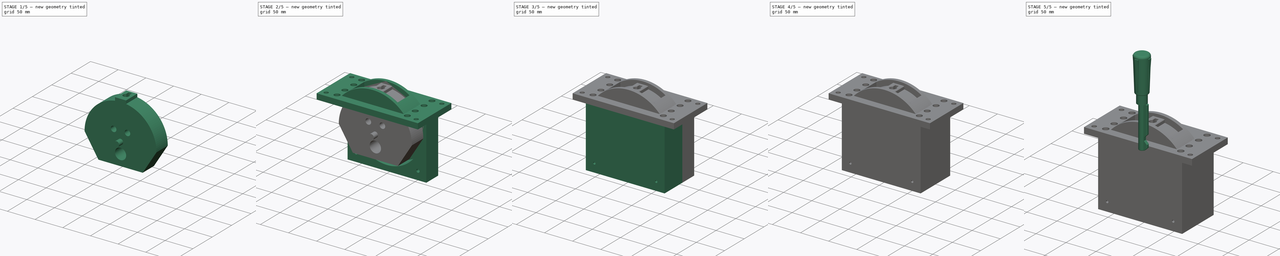
[diagram: build sequence overview — one tinted view per stage of 5, left to right]
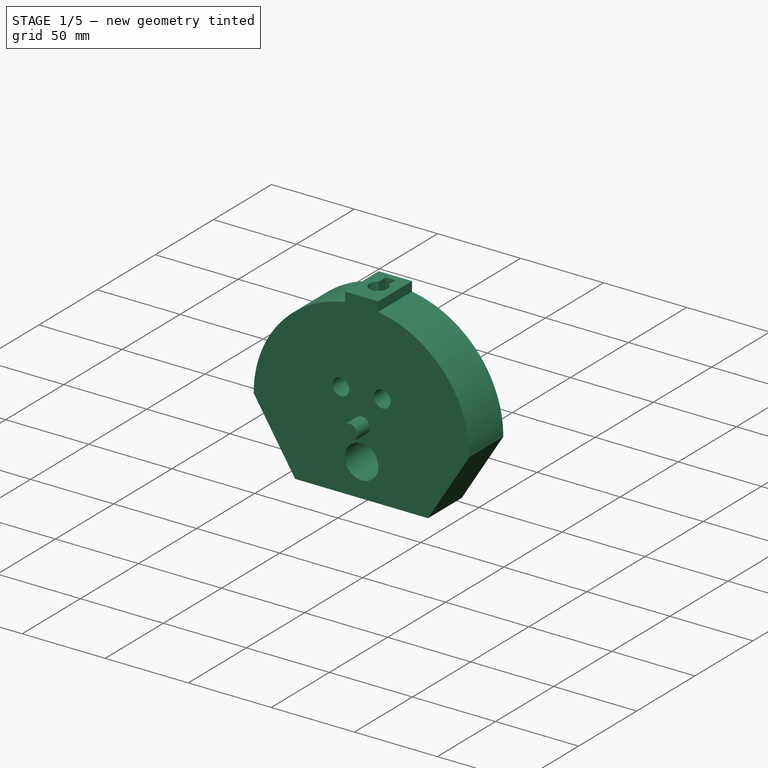
[diagram: stage 1 of 5 — iso view after this stage's code; geometry added in this stage tinted green]
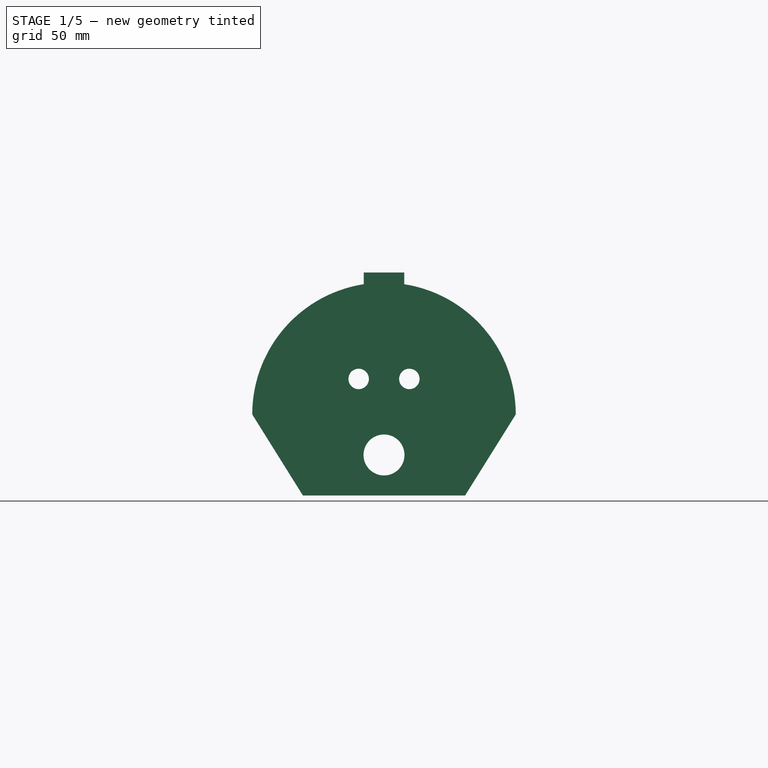
[diagram: stage 1 of 5 — front view after this stage's code; geometry added in this stage tinted green]
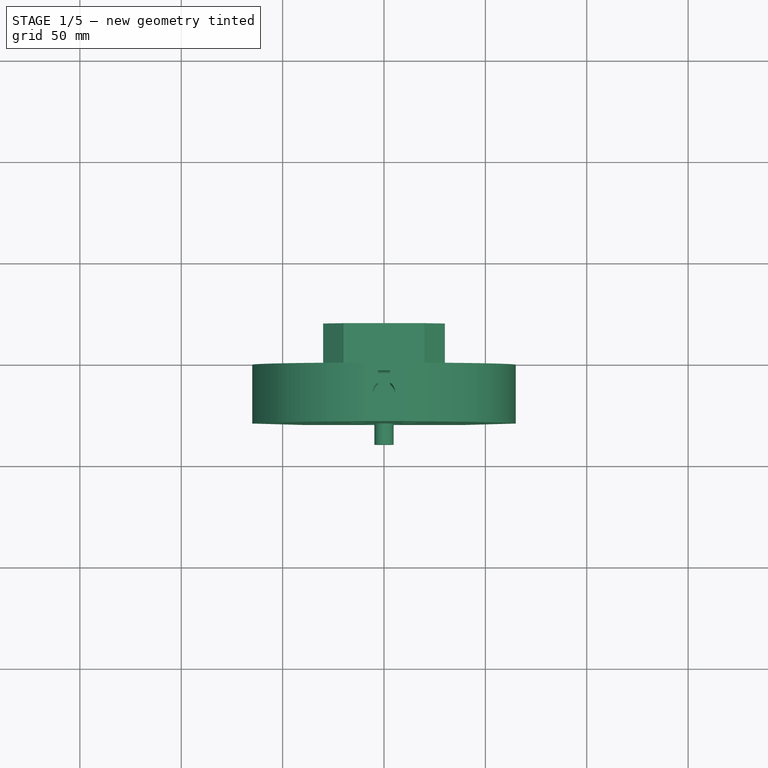
[diagram: stage 1 of 5 — top view after this stage's code; geometry added in this stage tinted green]
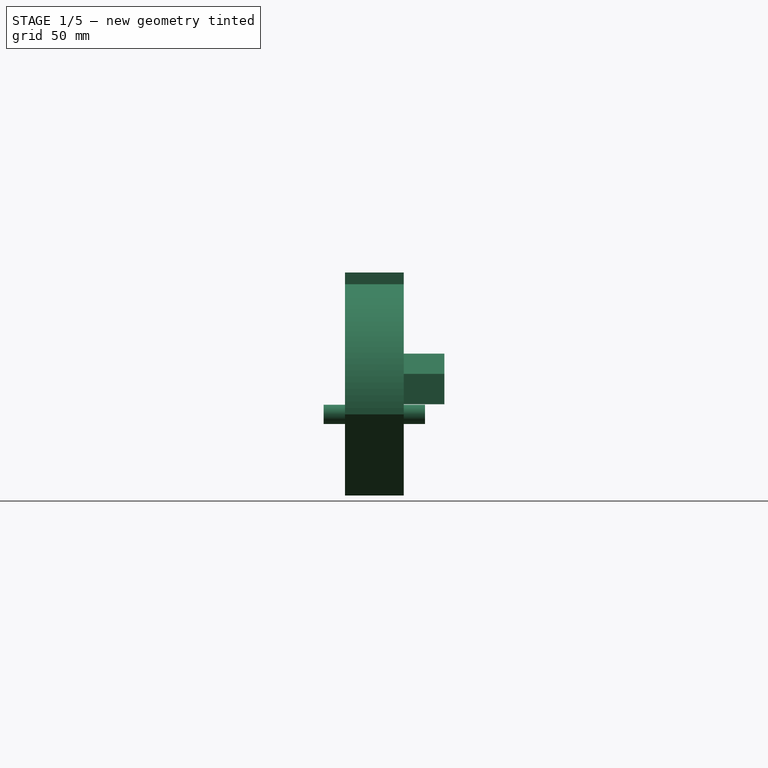
[diagram: stage 1 of 5 — right view after this stage's code; geometry added in this stage tinted green]
FCSTD DOCUMENT  (FreeCAD 1.0R39109 (Git))
Label: ReverserControls2
License: All rights reserved
LicenseURL: https://en.wikipedia.org/wiki/All_rights_reserved
objects: Sketcher::SketchObject×47, PartDesign::Pad×26, PartDesign::Pocket×11, PartDesign::Hole×10, PartDesign::Body×9, PartDesign::Fillet×3, PartDesign::Chamfer×2
note: 259 computed .brp shape members not serialized (recipe doc carries the construction recipe); baked Part::Feature solids carry a one-line shape summary decoded from their .brp

FEATURE [Sketcher::SketchObject] Sketch008  label="KeywaySocketSketch"
  ArcFitTolerance = 1e-06
  AttachmentOffset = pos=(0,0,15) rot=(0,0,1;0rad)
  AttachmentSupport = -> [XY_Plane002]
  FullyConstrained = false
  MakeInternals = false
  MapMode = 5
  Placement = pos=(0,0,15) rot=(0,0,1;0rad)
  sketch-geometry (8):
    g0: LineSegment StartX=-10 StartY=49.5 StartZ=0 EndX=-10 EndY=20.5 EndZ=0
    g1: LineSegment StartX=-10 StartY=20.5 StartZ=0 EndX=10 EndY=20.5 EndZ=0
    g2: LineSegment StartX=10 StartY=20.5 StartZ=0 EndX=10 EndY=49.5 EndZ=0
    g3: LineSegment StartX=10 StartY=49.5 StartZ=0 EndX=-10 EndY=49.5 EndZ=0
    g4: ArcOfCircle CenterX=-1.80805e-07 CenterY=35 CenterZ=0 NormalX=0 NormalY=0 NormalZ=1 AngleXU=0 Radius=5.40833 StartAngle=2.1588 EndAngle=7.26598
    g5: LineSegment StartX=-3 StartY=39.5 StartZ=0 EndX=-3 EndY=45.5 EndZ=0
    g6: LineSegment StartX=3 StartY=39.5 StartZ=0 EndX=3 EndY=45.5 EndZ=0
    g7: LineSegment StartX=3 StartY=45.5 StartZ=0 EndX=-3 EndY=45.5 EndZ=0
  constraints (15):
    c: Coincident(g0,g1)
    c: Coincident(g1,g2)
    c: Coincident(g2,g3)
    c: Coincident(g3,g0)
    c: Vertical(g0)
    c: Vertical(g2)
    c: Horizontal(g1)
    c: Horizontal(g3)
    c: Coincident(g5,g4)
    c: Vertical(g5)
    c: Coincident(g6,g4)
    c: Vertical(g6)
    c: Coincident(g7,g6)
    c: Coincident(g7,g5)
    c: Horizontal(g7)
FEATURE [PartDesign::Pad] Pad008  label="KeywayEntry"
  Direction = (0,0,1)
  Length = 15
  Length2 = 10
  Profile = -> Sketch008
  ReferenceAxis = -> Sketch008 [N_Axis]
  Refine = true
  Suppressed = false
  Type = 0
FEATURE [Sketcher::SketchObject] Sketch009  label="DustCoverSketch"
  ArcFitTolerance = 1e-06
  AttachmentOffset = pos=(0,0,-20.5) rot=(0,0,1;0rad)
  AttachmentSupport = -> [XZ_Plane002]
  FullyConstrained = false
  MakeInternals = false
  MapMode = 5
  Placement = pos=(0,20.5,-4.6e-15) rot=(1,0,0;1.5708rad)
  sketch-geometry (4):
    g0: ArcOfCircle CenterX=1.3008e-12 CenterY=-40 CenterZ=0 NormalX=0 NormalY=0 NormalZ=1 AngleXU=0 Radius=64.9998 StartAngle=-8.19327e-11 EndAngle=3.14159
    g1: LineSegment StartX=-64.9998 StartY=-40 StartZ=0 EndX=-40 EndY=-80 EndZ=0
    g2: LineSegment StartX=-40 StartY=-80 StartZ=0 EndX=40 EndY=-80 EndZ=0
    g3: LineSegment StartX=40 StartY=-80 StartZ=0 EndX=64.9998 EndY=-40 EndZ=0
  constraints (5):
    c: Coincident(g1,g0)
    c: Coincident(g2,g1)
    c: Horizontal(g2)
    c: Coincident(g3,g2)
    c: Coincident(g3,g0)
FEATURE [PartDesign::Pad] Pad009  label="DustCover"
  BaseFeature = -> Pad008
  Direction = (0,-1,2e-16)
  Length = 29
  Length2 = 10
  Profile = -> Sketch009
  ReferenceAxis = -> Sketch009 [N_Axis]
  Refine = true
  Reversed = true
  Suppressed = false
  Type = 0
FEATURE [PartDesign::Body] Body004  label="ReverserInterlock"
  AllowCompound = false
  Group = -> [Sketch012,Pad012,Sketch013,Pad013,Sketch014,Pad014,Chamfer,Sketch015,Pocket]
  Origin = -> Origin004
  Placement = pos=(0,5,-30) rot=(0,0,1;0rad)
  Tip = -> Pocket
FEATURE [Sketcher::SketchObject] Sketch016  label="KeyHoleSketch"
  ArcFitTolerance = 1e-06
  AttachmentOffset = pos=(0,0,30) rot=(0,0,1;0rad)
  AttachmentSupport = -> [XY_Plane002]
  FullyConstrained = false
  MakeInternals = false
  MapMode = 5
  Placement = pos=(0,0,30) rot=(0,0,1;0rad)
  sketch-geometry (4):
    g0: ArcOfCircle CenterX=1.95096e-07 CenterY=35 CenterZ=0 NormalX=0 NormalY=0 NormalZ=1 AngleXU=0 Radius=5.40833 StartAngle=2.1588 EndAngle=7.26598
    g1: LineSegment StartX=-3 StartY=39.5 StartZ=0 EndX=-3 EndY=45.5 EndZ=0
    g2: LineSegment StartX=-3 StartY=45.5 StartZ=0 EndX=3 EndY=45.5 EndZ=0
    g3: LineSegment StartX=3 StartY=45.5 StartZ=0 EndX=3 EndY=39.5 EndZ=0
  constraints (7):
    c: Coincident(g1,g0)
    c: Vertical(g1)
    c: Coincident(g2,g1)
    c: Horizontal(g2)
    c: Coincident(g3,g2)
    c: Coincident(g3,g0)
    c: Vertical(g3)
FEATURE [Sketcher::SketchObject] Sketch017  label="RotationPin"
  ArcFitTolerance = 1e-06
  AttachmentOffset = pos=(0,0,-10) rot=(0,0,1;0rad)
  AttachmentSupport = -> [XZ_Plane002]
  FullyConstrained = false
  MakeInternals = false
  MapMode = 5
  Placement = pos=(0,10,-2.2e-15) rot=(1,0,0;1.5708rad)
  sketch-geometry (1):
    g0: Circle CenterX=0 CenterY=-40 CenterZ=0 NormalX=0 NormalY=0 NormalZ=1 AngleXU=0 Radius=4.75
  constraints (1):
    c: Diameter(g0) = 9.5
FEATURE [PartDesign::Pad] Pad015  label="MountingPin"
  BaseFeature = -> Pad009
  Direction = (0,-1,2e-16)
  Length = 50
  Length2 = 10
  Profile = -> Sketch017
  ReferenceAxis = -> Sketch017 [N_Axis]
  Refine = true
  Reversed = true
  Suppressed = false
  Type = 0
FEATURE [PartDesign::Pocket] Pocket001  label="KeyHole"
  BaseFeature = -> Pad015
  Direction = (0,0,-1)
  Length = 70
  Length2 = 5
  Profile = -> Sketch016
  ReferenceAxis = -> Sketch016 [N_Axis]
  Refine = true
  Suppressed = false
  Type = 0
FEATURE [Sketcher::SketchObject] Sketch018  label="InterlockFrameCutoutSketch"
  ArcFitTolerance = 1e-06
  AttachmentOffset = pos=(0,0,-50) rot=(0,0,1;0rad)
  AttachmentSupport = -> [XZ_Plane002]
  FullyConstrained = false
  MakeInternals = false
  MapMode = 5
  Placement = pos=(0,50,-1.11e-14) rot=(1,0,0;1.5708rad)
  sketch-geometry (4):
    g0: LineSegment StartX=-20 StartY=-15 StartZ=0 EndX=-20 EndY=-30 EndZ=0
    g1: LineSegment StartX=-20 StartY=-30 StartZ=0 EndX=20 EndY=-30 EndZ=0
    g2: LineSegment StartX=20 StartY=-30 StartZ=0 EndX=20 EndY=-15 EndZ=0
    g3: LineSegment StartX=20 StartY=-15 StartZ=0 EndX=-20 EndY=-15 EndZ=0
  constraints (8):
    c: Coincident(g0,g1)
    c: Coincident(g1,g2)
    c: Coincident(g2,g3)
    c: Coincident(g3,g0)
    c: Vertical(g0)
    c: Vertical(g2)
    c: Horizontal(g1)
    c: Horizontal(g3)
FEATURE [PartDesign::Pocket] Pocket002  label="InterlockFrameCutout"
  BaseFeature = -> Pocket001
  Direction = (0,1,-2e-16)
  Length = 15
  Length2 = 5
  Profile = -> Sketch018
  ReferenceAxis = -> Sketch018 [N_Axis]
  Refine = true
  Reversed = true
  Suppressed = false
  Type = 0
FEATURE [Sketcher::SketchObject] Sketch019  label="InterlockPinHoleSketch"
  ArcFitTolerance = 1e-06
  AttachmentSupport = -> [XZ_Plane002]
  FullyConstrained = false
  MakeInternals = false
  MapMode = 5
  Placement = pos=(0,0,0) rot=(1,0,0;1.5708rad)
  sketch-geometry (2):
    g0: Circle CenterX=-12.5 CenterY=-22.5 CenterZ=0 NormalX=0 NormalY=0 NormalZ=1 AngleXU=0 Radius=5.05
    g1: Circle CenterX=12.5 CenterY=-22.5 CenterZ=0 NormalX=0 NormalY=0 NormalZ=1 AngleXU=0 Radius=5.05
  constraints (2):
    c: Equal(g0,g1)
    c: Diameter(g0) = 10.1
FEATURE [PartDesign::Pocket] Pocket003  label="InterlockPinHole"
  BaseFeature = -> Pocket002
  Direction = (0,1,-2e-16)
  Length = 117
  Length2 = 5
  Profile = -> Sketch019
  ReferenceAxis = -> Sketch019 [N_Axis]
  Refine = true
  Suppressed = false
  Type = 0
FEATURE [Sketcher::SketchObject] Sketch022  label="InterlockChannel"
  ArcFitTolerance = 1e-06
  AttachmentOffset = pos=(0,0,-49.5) rot=(0,0,1;0rad)
  AttachmentSupport = -> [XZ_Plane002]
  FullyConstrained = false
  MakeInternals = false
  MapMode = 5
  Placement = pos=(0,49.5,-1.1e-14) rot=(1,0,0;1.5708rad)
  sketch-geometry (14):
    g0: LineSegment StartX=-10 StartY=-35 StartZ=0 EndX=-10 EndY=-30 EndZ=0
    g1: LineSegment StartX=-10 StartY=-30 StartZ=0 EndX=-20 EndY=-30 EndZ=0
    g2: LineSegment StartX=-20 StartY=-30 StartZ=0 EndX=-20 EndY=-15 EndZ=0
    g3: LineSegment StartX=-20 StartY=-15 StartZ=0 EndX=20 EndY=-15 EndZ=0
    g4: LineSegment StartX=20 StartY=-15 StartZ=0 EndX=20 EndY=-30 EndZ=0
    g5: LineSegment StartX=20 StartY=-30 StartZ=0 EndX=10 EndY=-30 EndZ=0
    g6: LineSegment StartX=10 StartY=-30 StartZ=0 EndX=10 EndY=-35 EndZ=0
    g7: LineSegment StartX=10 StartY=-35 StartZ=0 EndX=30 EndY=-35 EndZ=0
    g8: LineSegment StartX=30 StartY=-35 StartZ=0 EndX=30 EndY=-20 EndZ=0
    g9: LineSegment StartX=-30 StartY=-20 StartZ=0 EndX=-30 EndY=-35 EndZ=0
    g10: LineSegment StartX=-30 StartY=-35 StartZ=0 EndX=-10 EndY=-35 EndZ=0
    g11: LineSegment StartX=20 StartY=-10 StartZ=0 EndX=-20 EndY=-10 EndZ=0
    g12: LineSegment StartX=-30 StartY=-20 StartZ=0 EndX=-20 EndY=-10 EndZ=0
    g13: LineSegment StartX=20 StartY=-10 StartZ=0 EndX=30 EndY=-20 EndZ=0
  constraints (26):
    c: Vertical(g0)
    c: Coincident(g1,g0)
    c: Horizontal(g1)
    c: Coincident(g2,g1)
    c: Vertical(g2)
    c: Coincident(g3,g2)
    c: Horizontal(g3)
    c: Coincident(g4,g3)
    c: Vertical(g4)
    c: Coincident(g5,g4)
    c: Horizontal(g5)
    c: Coincident(g6,g5)
    c: Vertical(g6)
    c: Coincident(g7,g6)
    c: Horizontal(g7)
    c: Coincident(g8,g7)
    c: Vertical(g8)
    c: Vertical(g9)
    c: Coincident(g10,g9)
    c: Coincident(g10,g0)
    c: Horizontal(g10)
    c: Horizontal(g11)
    c: Coincident(g12,g9)
    c: Coincident(g12,g11)
    c: Coincident(g13,g11)
    c: Coincident(g13,g8)
FEATURE [PartDesign::Pad] Pad016  label="InterlockChannelFrame"
  BaseFeature = -> Pocket003
  Direction = (0,-1,2e-16)
  Length = 20
  Length2 = 10
  Profile = -> Sketch022
  ReferenceAxis = -> Sketch022 [N_Axis]
  Refine = true
  Reversed = true
  Suppressed = false
  Type = 0
FEATURE [Sketcher::SketchObject] Sketch023  label="ScrewHolesSketch"
  ArcFitTolerance = 1e-06
  AttachmentOffset = pos=(0,0,-70) rot=(0,0,1;0rad)
  AttachmentSupport = -> [XZ_Plane002]
  FullyConstrained = false
  MakeInternals = false
  MapMode = 5
  Placement = pos=(0,70,-1.55e-14) rot=(1,0,0;1.5708rad)
  sketch-geometry (4):
    g0: Circle CenterX=-25 CenterY=-30 CenterZ=0 NormalX=0 NormalY=0 NormalZ=1 AngleXU=0 Radius=2.53539
    g1: Circle CenterX=25 CenterY=-30 CenterZ=0 NormalX=0 NormalY=0 NormalZ=1 AngleXU=0 Radius=2.11464
    g2: Circle CenterX=-25 CenterY=-22.5 CenterZ=0 NormalX=0 NormalY=0 NormalZ=1 AngleXU=0 Radius=1.66769
    g3: Circle CenterX=25 CenterY=-22.5 CenterZ=0 NormalX=0 NormalY=0 NormalZ=1 AngleXU=0 Radius=2.09318
FEATURE [PartDesign::Hole] Hole  label="ScrewHoles"
  BaseFeature = -> Pad016
  CustomThreadClearance = 0
  Depth = 25
  DepthType = 0
  Diameter = 2.5
  DrillForDepth = false
  DrillPoint = 1
  DrillPointAngle = 118
  HoleCutCountersinkAngle = 90
  HoleCutCustomValues = false
  HoleCutDepth = 0
  HoleCutDiameter = 6.1
  HoleCutType = 0
  ModelThread = false
  Profile = -> Sketch023
  Refine = true
  Reversed = true
  Suppressed = false
  Tapered = false
  TaperedAngle = 90
  ThreadClass = 0
  ThreadDepth = 25
  ThreadDepthType = 0
  ThreadDirection = 0
  ThreadFit = 0
  ThreadSize = 9
  ThreadType = 1
  Threaded = true
  UseCustomThreadClearance = false
FEATURE [Sketcher::SketchObject] Sketch031  label="LatchingPinHoleSketch"
  ArcFitTolerance = 1e-06
  AttachmentOffset = pos=(0,0,-50) rot=(0,0,1;0rad)
  AttachmentSupport = -> [XZ_Plane002]
  FullyConstrained = false
  MakeInternals = false
  MapMode = 5
  Placement = pos=(0,50,-1.11e-14) rot=(1,0,0;1.5708rad)
  sketch-geometry (1):
    g0: Circle CenterX=0 CenterY=-60 CenterZ=0 NormalX=0 NormalY=0 NormalZ=1 AngleXU=0 Radius=10.1
  constraints (1):
    c: Diameter(g0) = 20.2
FEATURE [PartDesign::Pocket] Pocket007  label="LatchingPinHole"
  BaseFeature = -> Hole
  Direction = (0,1,-2e-16)
  Length = 30
  Length2 = 5
  Profile = -> Sketch031
  ReferenceAxis = -> Sketch031 [N_Axis]
  Refine = true
  Reversed = true
  Suppressed = false
  Type = 0
FEATURE [Sketcher::SketchObject] Sketch032  label="LatchingPinCoverHoleSketch"
  ArcFitTolerance = 1e-06
  AttachmentOffset = pos=(0,0,-50) rot=(0,0,1;0rad)
  AttachmentSupport = -> [XZ_Plane002]
  FullyConstrained = false
  MakeInternals = false
  MapMode = 5
  Placement = pos=(0,50,-1.11e-14) rot=(1,0,0;1.5708rad)
  sketch-geometry (4):
    g0: Circle CenterX=-15 CenterY=-50 CenterZ=0 NormalX=0 NormalY=0 NormalZ=1 AngleXU=0 Radius=2.08306
    g1: Circle CenterX=-15 CenterY=-70 CenterZ=0 NormalX=0 NormalY=0 NormalZ=1 AngleXU=0 Radius=2.11401
    g2: Circle CenterX=15 CenterY=-70 CenterZ=0 NormalX=0 NormalY=0 NormalZ=1 AngleXU=0 Radius=2.46975
    g3: Circle CenterX=15 CenterY=-50 CenterZ=0 NormalX=0 NormalY=0 NormalZ=1 AngleXU=0 Radius=2.46734
FEATURE [PartDesign::Hole] Hole003  label="LatchingPinCoverHoles"
  BaseFeature = -> Pocket007
  CustomThreadClearance = 0
  Depth = 25
  DepthType = 0
  Diameter = 4.2
  DrillForDepth = false
  DrillPoint = 1
  DrillPointAngle = 118
  HoleCutCountersinkAngle = 90
  HoleCutCustomValues = false
  HoleCutDepth = 0
  HoleCutDiameter = 6.1
  HoleCutType = 0
  ModelThread = false
  Profile = -> Sketch032
  Refine = true
  Reversed = true
  Suppressed = false
  Tapered = false
  TaperedAngle = 90
  ThreadClass = 0
  ThreadDepth = 25
  ThreadDepthType = 0
  ThreadDirection = 0
  ThreadFit = 0
  ThreadSize = 13
  ThreadType = 1
  Threaded = true
  UseCustomThreadClearance = false
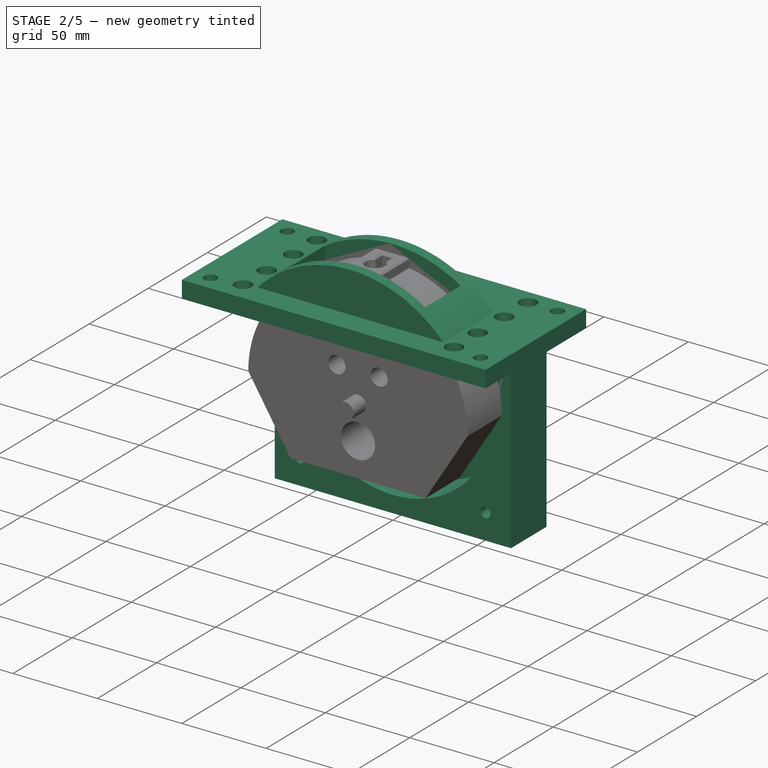
[diagram: stage 2 of 5 — iso view after this stage's code; geometry added in this stage tinted green]
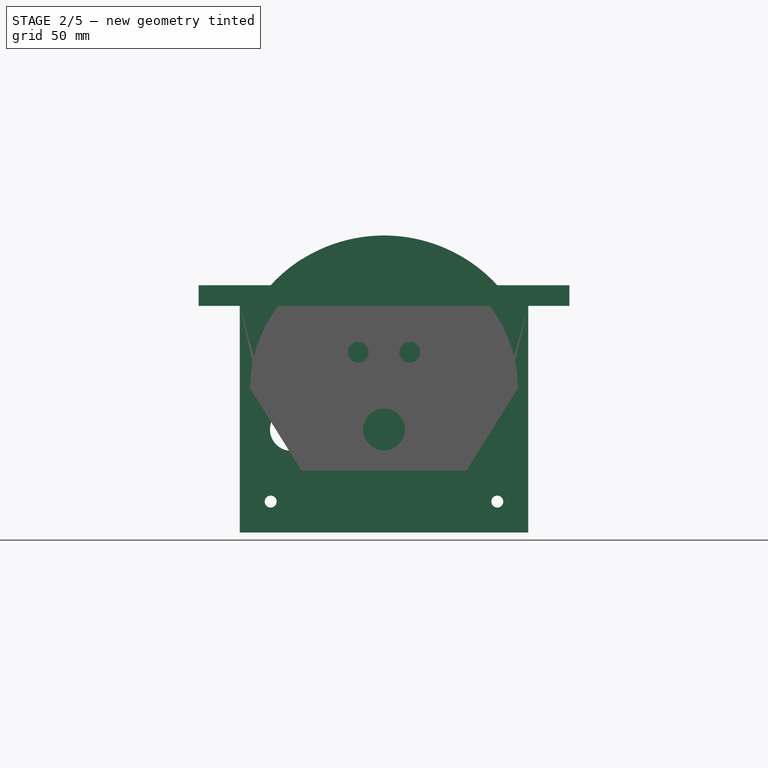
[diagram: stage 2 of 5 — front view after this stage's code; geometry added in this stage tinted green]
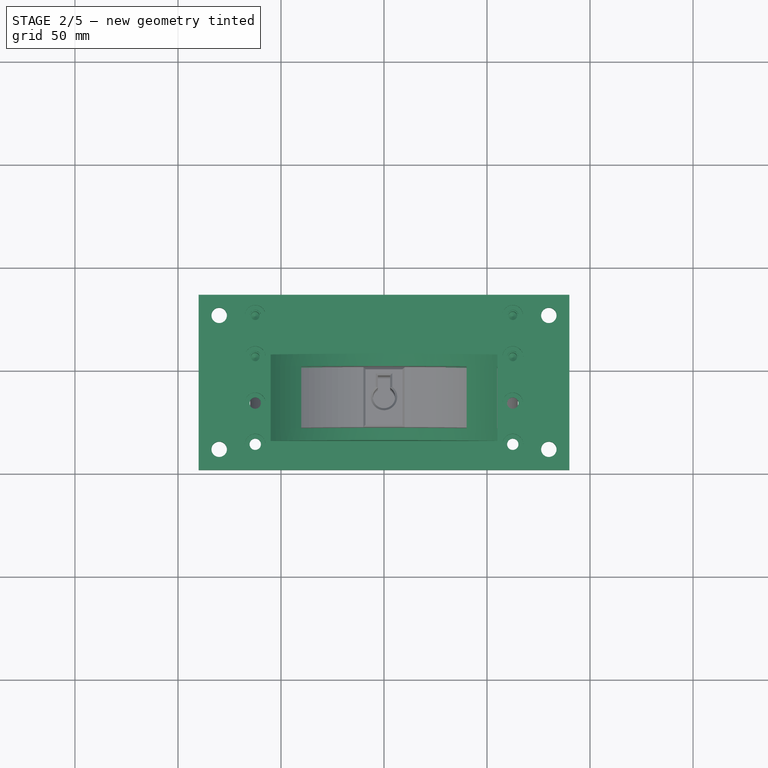
[diagram: stage 2 of 5 — top view after this stage's code; geometry added in this stage tinted green]
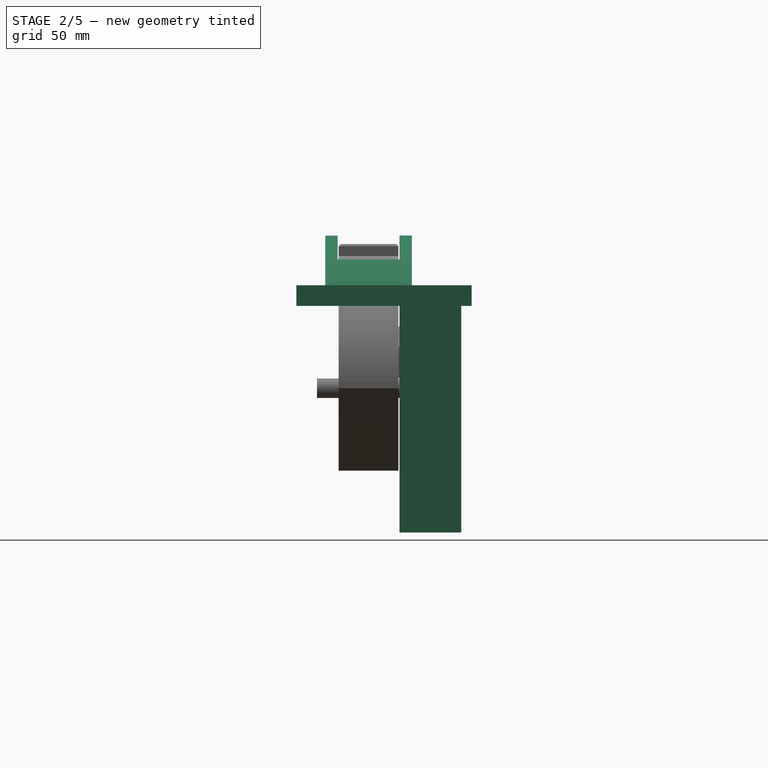
[diagram: stage 2 of 5 — right view after this stage's code; geometry added in this stage tinted green]
FEATURE [PartDesign::Body] Body  label="ReverserHandle"
  AllowCompound = false
  Group = -> [Sketch,Pad,Sketch001,Pad001,Sketch002,Pad002,Sketch003,Sketch004,Pad003,Pad004,Fillet,Fillet001,Fillet002]
  Origin = -> Origin
  Placement = pos=(-5,25,-45) rot=(0,0,-1;4.71239rad)
  Tip = -> Fillet002
FEATURE [Sketcher::SketchObject] Sketch005  label="FrontPanel"
  ArcFitTolerance = 1e-06
  AttachmentSupport = -> [XY_Plane001]
  FullyConstrained = false
  MakeInternals = false
  MapMode = 5
  sketch-geometry (12):
    g0: LineSegment StartX=90 StartY=0 StartZ=0 EndX=90 EndY=85 EndZ=0
    g1: LineSegment StartX=90 StartY=85 StartZ=0 EndX=-90 EndY=85 EndZ=0
    g2: LineSegment StartX=-90 StartY=85 StartZ=0 EndX=-90 EndY=0 EndZ=0
    g3: LineSegment StartX=-90 StartY=0 StartZ=0 EndX=90 EndY=0 EndZ=0
    g4: LineSegment StartX=-55 StartY=50 StartZ=0 EndX=-55 EndY=20 EndZ=0
    g5: LineSegment StartX=-55 StartY=20 StartZ=0 EndX=55 EndY=20 EndZ=0
    g6: LineSegment StartX=55 StartY=20 StartZ=0 EndX=55 EndY=50 EndZ=0
    g7: LineSegment StartX=55 StartY=50 StartZ=0 EndX=-55 EndY=50 EndZ=0
    g8: Circle CenterX=-80 CenterY=75 CenterZ=0 NormalX=0 NormalY=0 NormalZ=1 AngleXU=0 Radius=3.75
    g9: Circle CenterX=80 CenterY=75 CenterZ=0 NormalX=0 NormalY=0 NormalZ=1 AngleXU=0 Radius=3.75
    g10: Circle CenterX=-80 CenterY=10 CenterZ=0 NormalX=0 NormalY=0 NormalZ=1 AngleXU=0 Radius=3.75
    g11: Circle CenterX=80 CenterY=10 CenterZ=0 NormalX=0 NormalY=0 NormalZ=1 AngleXU=0 Radius=3.75
  constraints (17):
    c: Coincident(g0,g1)
    c: Coincident(g1,g2)
    c: Coincident(g2,g3)
    c: Coincident(g3,g0)
    c: Vertical(g0)
    c: Vertical(g2)
    c: Horizontal(g1)
    c: Horizontal(g3)
    c: Coincident(g4,g5)
    c: Coincident(g5,g6)
    c: Coincident(g6,g7)
    c: Coincident(g7,g4)
    c: Vertical(g4)
    c: Vertical(g6)
    c: Horizontal(g5)
    c: Horizontal(g7)
    c: Diameter(g9) = 7.5
FEATURE [PartDesign::Pad] Pad005  label="MainFaceplate"
  Direction = (0,0,1)
  Length = 10
  Length2 = 10
  Profile = -> Sketch005
  ReferenceAxis = -> Sketch005 [N_Axis]
  Refine = true
  Suppressed = false
  Type = 0
FEATURE [Sketcher::SketchObject] Sketch006  label="FrontArc"
  ArcFitTolerance = 1e-06
  AttachmentOffset = pos=(0,0,-20) rot=(0,0,1;0rad)
  AttachmentSupport = -> [XZ_Plane001]
  FullyConstrained = false
  MakeInternals = false
  MapMode = 5
  Placement = pos=(0,20,-4.4e-15) rot=(1,0,0;1.5708rad)
  sketch-geometry (4):
    g0: LineSegment StartX=-55 StartY=10 StartZ=0 EndX=-55 EndY=5 EndZ=0
    g1: LineSegment StartX=-55 StartY=5 StartZ=0 EndX=55 EndY=5 EndZ=0
    g2: LineSegment StartX=55 StartY=5 StartZ=0 EndX=55 EndY=10 EndZ=0
    g3: ArcOfCircle CenterX=-3e-06 CenterY=-40.7759 CenterZ=0 NormalX=0 NormalY=0 NormalZ=1 AngleXU=0 Radius=74.8545 StartAngle=0.745485 EndAngle=2.39611
  constraints (7):
    c: Vertical(g0)
    c: Coincident(g1,g0)
    c: Horizontal(g1)
    c: Coincident(g2,g1)
    c: Vertical(g2)
    c: Coincident(g3,g0)
    c: Coincident(g3,g2)
FEATURE [PartDesign::Pad] Pad006  label="BottomArc"
  BaseFeature = -> Pad005
  Direction = (0,-1,2e-16)
  Length = 6
  Length2 = 10
  Profile = -> Sketch006
  ReferenceAxis = -> Sketch006 [N_Axis]
  Refine = true
  Suppressed = false
  Type = 0
FEATURE [Sketcher::SketchObject] Sketch007  label="FrontArc001"
  ArcFitTolerance = 1e-06
  AttachmentOffset = pos=(0,0,-50) rot=(0,0,1;0rad)
  AttachmentSupport = -> [XZ_Plane001]
  FullyConstrained = false
  MakeInternals = false
  MapMode = 5
  Placement = pos=(0,50,-1.11e-14) rot=(1,0,0;1.5708rad)
  sketch-geometry (4):
    g0: LineSegment StartX=-55 StartY=10 StartZ=0 EndX=-55 EndY=5 EndZ=0
    g1: LineSegment StartX=-55 StartY=5 StartZ=0 EndX=55 EndY=5 EndZ=0
    g2: LineSegment StartX=55 StartY=5 StartZ=0 EndX=55 EndY=10 EndZ=0
    g3: ArcOfCircle CenterX=0 CenterY=-40.5703 CenterZ=0 NormalX=0 NormalY=0 NormalZ=1 AngleXU=0 Radius=74.7151 StartAngle=0.743463 EndAngle=2.39813
  constraints (7):
    c: Vertical(g0)
    c: Coincident(g1,g0)
    c: Horizontal(g1)
    c: Coincident(g2,g1)
    c: Vertical(g2)
    c: Coincident(g3,g0)
    c: Coincident(g3,g2)
FEATURE [PartDesign::Pad] Pad007  label="TopArc"
  BaseFeature = -> Pad006
  Direction = (0,-1,2e-16)
  Length = 6
  Length2 = 10
  Profile = -> Sketch007
  ReferenceAxis = -> Sketch007 [N_Axis]
  Refine = true
  Reversed = true
  Suppressed = false
  Type = 0
FEATURE [PartDesign::Body] Body005  label="ReverserInterlockSpringLid"
  AllowCompound = false
  Group = -> [Sketch024,Pad017,Sketch025,Hole001,Sketch026,Pad018,Sketch027,Pocket006]
  Origin = -> Origin005
  Tip = -> Pocket006
FEATURE [Sketcher::SketchObject] Sketch028  label="TopFrameBaseSketch"
  ArcFitTolerance = 1e-06
  AttachmentOffset = pos=(0,0,-80) rot=(0,0,1;0rad)
  AttachmentSupport = -> [XZ_Plane006]
  FullyConstrained = false
  MakeInternals = false
  MapMode = 5
  Placement = pos=(0,80,-1.78e-14) rot=(1,0,0;1.5708rad)
  sketch-geometry (4):
    g0: LineSegment StartX=-70 StartY=0 StartZ=0 EndX=-70 EndY=-110 EndZ=0
    g1: LineSegment StartX=-70 StartY=-110 StartZ=0 EndX=70 EndY=-110 EndZ=0
    g2: LineSegment StartX=70 StartY=-110 StartZ=0 EndX=70 EndY=0 EndZ=0
    g3: LineSegment StartX=70 StartY=0 StartZ=0 EndX=-70 EndY=0 EndZ=0
  constraints (8):
    c: Coincident(g0,g1)
    c: Coincident(g1,g2)
    c: Coincident(g2,g3)
    c: Coincident(g3,g0)
    c: Vertical(g0)
    c: Vertical(g2)
    c: Horizontal(g1)
    c: Horizontal(g3)
FEATURE [PartDesign::Pad] Pad019  label="TopLid"
  Direction = (0,-1,2e-16)
  Length = 3
  Length2 = 10
  Placement = pos=(0,0,0) rot=(1,0,0;1.5708rad)
  Profile = -> Sketch028
  ReferenceAxis = -> Sketch028 [N_Axis]
  Refine = true
  Suppressed = false
  Type = 0
FEATURE [Sketcher::SketchObject] Sketch029  label="TopHalfBodySketch"
  ArcFitTolerance = 1e-06
  AttachmentOffset = pos=(0,0,-77) rot=(0,0,1;0rad)
  AttachmentSupport = -> [XZ_Plane006]
  FullyConstrained = false
  MakeInternals = false
  MapMode = 5
  Placement = pos=(0,77,-1.71e-14) rot=(1,0,0;1.5708rad)
  sketch-geometry (9):
    g0: LineSegment StartX=-70 StartY=1.4e-05 StartZ=0 EndX=-70 EndY=-110 EndZ=0
    g1: LineSegment StartX=-70 StartY=-110 StartZ=0 EndX=70 EndY=-110 EndZ=0
    g2: LineSegment StartX=70 StartY=-110 StartZ=0 EndX=70 EndY=1.59167e-05 EndZ=0
    g3: ArcOfCircle CenterX=-2.526e-13 CenterY=-40 CenterZ=0 NormalX=0 NormalY=0 NormalZ=1 AngleXU=0 Radius=7.5 StartAngle=6.28318 EndAngle=9.42478
    g4: Circle CenterX=0 CenterY=-40 CenterZ=0 NormalX=0 NormalY=0 NormalZ=1 AngleXU=0 Radius=5.1
    g5: ArcOfCircle CenterX=-6.96e-14 CenterY=-40 CenterZ=0 NormalX=0 NormalY=0 NormalZ=1 AngleXU=0 Radius=7.5 StartAngle=3.14159 EndAngle=6.28318
    g6: ArcOfCircle CenterX=-1.51287e-07 CenterY=-40 CenterZ=0 NormalX=0 NormalY=0 NormalZ=1 AngleXU=0 Radius=60.208 StartAngle=2.41495 EndAngle=7.00983
    g7: LineSegment StartX=-45 StartY=1.4e-05 StartZ=0 EndX=-70 EndY=1.4e-05 EndZ=0
    g8: LineSegment StartX=45 StartY=1.59167e-05 StartZ=0 EndX=70 EndY=1.59167e-05 EndZ=0
  constraints (14):
    c: Vertical(g0)
    c: Coincident(g1,g0)
    c: Horizontal(g1)
    c: Coincident(g2,g1)
    c: Vertical(g2)
    c: Diameter(g4) = 10.2
    c: Coincident(g5,g3)
    c: Coincident(g5,g3)
    c: Coincident(g7,g6)
    c: Coincident(g7,g0)
    c: Horizontal(g7)
    c: Coincident(g8,g6)
    c: Coincident(g8,g2)
    c: Horizontal(g8)
FEATURE [PartDesign::Pad] Pad020  label="TopHalfBody"
  BaseFeature = -> Pad019
  Direction = (0,-1,2e-16)
  Length = 27
  Length2 = 10
  Placement = pos=(0,0,0) rot=(1,0,0;1.5708rad)
  Profile = -> Sketch029
  ReferenceAxis = -> Sketch029 [N_Axis]
  Refine = true
  Suppressed = false
  Type = 0
FEATURE [PartDesign::Body] Body008  label="ReverserLatchPinCover"
  AllowCompound = false
  Group = -> [Sketch036,Pad023,Sketch037,Pocket009,Sketch038,Hole004,Sketch039,Pad024]
  Origin = -> Origin008
  Tip = -> Pad024
FEATURE [Sketcher::SketchObject] Sketch040  label="ScrewHoles002"
  ArcFitTolerance = 1e-06
  AttachmentOffset = pos=(0,0,10) rot=(0,0,1;0rad)
  AttachmentSupport = -> [XY_Plane001]
  FullyConstrained = false
  MakeInternals = false
  MapMode = 5
  Placement = pos=(0,0,10) rot=(0,0,1;0rad)
  sketch-geometry (8):
    g0: Circle CenterX=-62.5 CenterY=12.5 CenterZ=0 NormalX=0 NormalY=0 NormalZ=1 AngleXU=0 Radius=2.5
    g1: Circle CenterX=-62.5 CenterY=32.5 CenterZ=0 NormalX=0 NormalY=0 NormalZ=1 AngleXU=0 Radius=2.5
    g2: Circle CenterX=-62.5 CenterY=55 CenterZ=0 NormalX=0 NormalY=0 NormalZ=1 AngleXU=0 Radius=2.5
    g3: Circle CenterX=-62.5 CenterY=75 CenterZ=0 NormalX=0 NormalY=0 NormalZ=1 AngleXU=0 Radius=2.5
    g4: Circle CenterX=62.5 CenterY=12.5 CenterZ=0 NormalX=0 NormalY=0 NormalZ=1 AngleXU=0 Radius=2.5
    g5: Circle CenterX=62.5 CenterY=32.5 CenterZ=0 NormalX=0 NormalY=0 NormalZ=1 AngleXU=0 Radius=2.5
    g6: Circle CenterX=62.5 CenterY=55 CenterZ=0 NormalX=0 NormalY=0 NormalZ=1 AngleXU=0 Radius=2.5
    g7: Circle CenterX=62.5 CenterY=75 CenterZ=0 NormalX=0 NormalY=0 NormalZ=1 AngleXU=0 Radius=2.5
FEATURE [PartDesign::Hole] Hole005  label="FrontHoles002"
  BaseFeature = -> Pad007
  CustomThreadClearance = 0
  Depth = 25
  DepthType = 0
  Diameter = 5.5
  DrillForDepth = false
  DrillPoint = 1
  DrillPointAngle = 118
  HoleCutCountersinkAngle = 90
  HoleCutCustomValues = false
  HoleCutDepth = 5.4
  HoleCutDiameter = 10
  HoleCutType = 10
  ModelThread = false
  Profile = -> Sketch040
  Refine = true
  Suppressed = false
  Tapered = false
  TaperedAngle = 90
  ThreadClass = 0
  ThreadDepth = 25
  ThreadDepthType = 0
  ThreadDirection = 0
  ThreadFit = 0
  ThreadSize = 13
  ThreadType = 1
  Threaded = false
  UseCustomThreadClearance = false
FEATURE [Sketcher::SketchObject] Sketch041  label="FrontHoles"
  ArcFitTolerance = 1e-06
  AttachmentOffset = pos=(0,0,1) rot=(0,0,1;0rad)
  AttachmentSupport = -> [XY_Plane003]
  FullyConstrained = false
  MakeInternals = false
  MapMode = 5
  Placement = pos=(0,0,1) rot=(0,0,1;0rad)
  sketch-geometry (4):
    g0: Circle CenterX=-62.5 CenterY=32.5 CenterZ=0 NormalX=0 NormalY=0 NormalZ=1 AngleXU=0 Radius=2.5
    g1: Circle CenterX=-62.5 CenterY=12.5 CenterZ=0 NormalX=0 NormalY=0 NormalZ=1 AngleXU=0 Radius=2.5
    g2: Circle CenterX=62.5 CenterY=12.5 CenterZ=0 NormalX=0 NormalY=0 NormalZ=1 AngleXU=0 Radius=2.5
    g3: Circle CenterX=62.5 CenterY=32.5 CenterZ=0 NormalX=0 NormalY=0 NormalZ=1 AngleXU=0 Radius=2.5
FEATURE [Sketcher::SketchObject] Sketch042  label="FrontHoles001"
  ArcFitTolerance = 1e-06
  AttachmentSupport = -> [XY_Plane006]
  FullyConstrained = false
  MakeInternals = false
  MapMode = 5
  sketch-geometry (4):
    g0: Circle CenterX=-62.5 CenterY=75 CenterZ=0 NormalX=0 NormalY=0 NormalZ=1 AngleXU=0 Radius=2.5
    g1: Circle CenterX=-62.5 CenterY=55 CenterZ=0 NormalX=0 NormalY=0 NormalZ=1 AngleXU=0 Radius=2.5
    g2: Circle CenterX=62.5 CenterY=75 CenterZ=0 NormalX=0 NormalY=0 NormalZ=1 AngleXU=0 Radius=2.5
    g3: Circle CenterX=62.5 CenterY=55 CenterZ=0 NormalX=0 NormalY=0 NormalZ=1 AngleXU=0 Radius=2.5
FEATURE [PartDesign::Hole] Hole006
  BaseFeature = -> Pad020
  CustomThreadClearance = 0
  Depth = 15
  DepthType = 0
  Diameter = 4.2
  DrillForDepth = false
  DrillPoint = 1
  DrillPointAngle = 118
  HoleCutCountersinkAngle = 90
  HoleCutCustomValues = false
  HoleCutDepth = 0
  HoleCutDiameter = 6.1
  HoleCutType = 0
  ModelThread = false
  Placement = pos=(0,0,0) rot=(1,0,0;1.5708rad)
  Profile = -> Sketch042
  Refine = true
  Suppressed = false
  Tapered = false
  TaperedAngle = 90
  ThreadClass = 0
  ThreadDepth = 15
  ThreadDepthType = 0
  ThreadDirection = 0
  ThreadFit = 0
  ThreadSize = 13
  ThreadType = 1
  Threaded = true
  UseCustomThreadClearance = false
FEATURE [Sketcher::SketchObject] Sketch043  label="TopHoles"
  ArcFitTolerance = 1e-06
  AttachmentOffset = pos=(0,0,-80) rot=(0,0,1;0rad)
  AttachmentSupport = -> [XZ_Plane006]
  FullyConstrained = false
  MakeInternals = false
  MapMode = 5
  Placement = pos=(0,80,-1.78e-14) rot=(1,0,0;1.5708rad)
  sketch-geometry (2):
    g0: Circle CenterX=-55 CenterY=-95 CenterZ=0 NormalX=0 NormalY=0 NormalZ=1 AngleXU=0 Radius=5
    g1: Circle CenterX=55 CenterY=-95 CenterZ=0 NormalX=0 NormalY=0 NormalZ=1 AngleXU=0 Radius=5
FEATURE [PartDesign::Hole] Hole008
  BaseFeature = -> Hole006
  CustomThreadClearance = 0
  Depth = 364.721
  DepthType = 1
  Diameter = 5.8
  DrillForDepth = false
  DrillPoint = 1
  DrillPointAngle = 118
  HoleCutCountersinkAngle = 90
  HoleCutCustomValues = false
  HoleCutDepth = 6.4
  HoleCutDiameter = 13
  HoleCutType = 9
  ModelThread = false
  Placement = pos=(0,0,0) rot=(1,0,0;1.5708rad)
  Profile = -> Sketch043
  Refine = true
  Reversed = true
  Suppressed = false
  Tapered = false
  TaperedAngle = 90
  ThreadClass = 0
  ThreadDepth = 364.721
  ThreadDepthType = 0
  ThreadDirection = 0
  ThreadFit = 2
  ThreadSize = 13
  ThreadType = 1
  Threaded = false
  UseCustomThreadClearance = false
FEATURE [PartDesign::Body] Body003  label="ReverserBackBodyFrame"
  AllowCompound = false
  Group = -> [Sketch010,Pad010,Sketch011,Pad011,Sketch020,Pocket004,Sketch021,Pocket005,Sketch030,Hole002,Sketch041,Hole007,Sketch044,Hole009]
  Origin = -> Origin003
  Tip = -> Hole009
FEATURE [Sketcher::SketchObject] Sketch045  label="TopSideCableGlandHole"
  ArcFitTolerance = 1e-06
  AttachmentOffset = pos=(0,0,-80) rot=(0,0,1;0rad)
  AttachmentSupport = -> [XZ_Plane006]
  FullyConstrained = false
  MakeInternals = false
  MapMode = 5
  Placement = pos=(0,80,-1.78e-14) rot=(1,0,0;1.5708rad)
  sketch-geometry (1):
    g0: Circle CenterX=-45 CenterY=-60 CenterZ=0 NormalX=0 NormalY=0 NormalZ=1 AngleXU=0 Radius=10.35
  constraints (1):
    c: Diameter(g0) = 20.7
FEATURE [PartDesign::Pocket] Pocket010  label="CableGlandHole"
  BaseFeature = -> Hole008
  Direction = (0,1,-2e-16)
  Length = 5
  Length2 = 5
  Placement = pos=(0,0,0) rot=(1,0,0;1.5708rad)
  Profile = -> Sketch045
  ReferenceAxis = -> Sketch045 [N_Axis]
  Refine = true
  Reversed = true
  Suppressed = false
  Type = 0
FEATURE [PartDesign::Body] Body006  label="ReverserBackBodyTopFrame"
  AllowCompound = false
  Group = -> [Sketch028,Pad019,Sketch029,Pad020,Sketch042,Hole006,Sketch043,Hole008,Sketch045,Pocket010]
  Origin = -> Origin006
  Tip = -> Pocket010
FEATURE [Sketcher::SketchObject] Sketch046  label="EndStopSketch"
  ArcFitTolerance = 1e-06
  AttachmentOffset = pos=(0,0,-20) rot=(0,0,1;0rad)
  AttachmentSupport = -> [XZ_Plane001]
  FullyConstrained = false
  MakeInternals = false
  MapMode = 5
  Placement = pos=(0,20,-4.4e-15) rot=(1,0,0;1.5708rad)
  sketch-geometry (8):
    g0: ArcOfCircle CenterX=-9.74716e-08 CenterY=-40 CenterZ=0 NormalX=0 NormalY=0 NormalZ=1 AngleXU=0 Radius=74.2707 StartAngle=0.738545 EndAngle=1.00034
    g1: ArcOfCircle CenterX=0 CenterY=-40 CenterZ=0 NormalX=0 NormalY=0 NormalZ=1 AngleXU=0 Radius=74.3303 StartAngle=2.14198 EndAngle=2.40378
    g2: LineSegment StartX=40.1071 StartY=22.5104 StartZ=0 EndX=40.1071 EndY=15.0001 EndZ=0
    g3: LineSegment StartX=40.1071 StartY=15.0001 StartZ=0 EndX=54.9193 EndY=0.019657 EndZ=0
    g4: LineSegment StartX=-40.185 StartY=22.5313 StartZ=0 EndX=-40.185 EndY=15 EndZ=0
    g5: LineSegment StartX=-40.185 StartY=15 StartZ=0 EndX=-55 EndY=1.8e-15 EndZ=0
    g6: LineSegment StartX=-55 StartY=0 StartZ=0 EndX=-55 EndY=9.99998 EndZ=0
    g7: LineSegment StartX=54.9193 StartY=10 StartZ=0 EndX=54.9193 EndY=0.019657 EndZ=0
  constraints (14):
    c: Angle(g0) = 0.261799
    c: Angle(g1) = 0.261799
    c: Coincident(g2,g0)
    c: Vertical(g2)
    c: Coincident(g3,g2)
    c: Coincident(g4,g1)
    c: Vertical(g4)
    c: Coincident(g5,g4)
    c: Coincident(g6,g5)
    c: Coincident(g6,g1)
    c: Vertical(g6)
    c: Coincident(g7,g0)
    c: Coincident(g7,g3)
    c: Vertical(g7)
FEATURE [PartDesign::Pad] Pad025  label="EndStop"
  BaseFeature = -> Hole005
  Direction = (0,-1,2e-16)
  Length = 30
  Length2 = 10
  Profile = -> Sketch046
  ReferenceAxis = -> Sketch046 [N_Axis]
  Refine = true
  Reversed = true
  Suppressed = false
  Type = 0
FEATURE [PartDesign::Body] Body001  label="ReverserControlFrame"
  AllowCompound = false
  Group = -> [Sketch005,Pad005,Sketch006,Pad006,Sketch007,Pad007,Sketch040,Hole005,Sketch046,Pad025]
  Origin = -> Origin001
  Tip = -> Pad025
FEATURE [PartDesign::Chamfer] Chamfer001
  Angle = 45
  Base = -> Hole003 [Edge46,Edge47,Edge48,Edge45,Edge40,Edge22,Edge44,Edge9]
  BaseFeature = -> Hole003
  ChamferType = 0
  FlipDirection = false
  Refine = true
  Size = 1
  Size2 = 1
  SupportTransform = false
  Suppressed = false
  UseAllEdges = false
FEATURE [PartDesign::Body] Body002  label="ReverserKeywayEntry"
  AllowCompound = false
  Group = -> [Sketch008,Pad008,Sketch009,Pad009,Sketch016,Sketch017,Pad015,Pocket001,Sketch018,Pocket002,Sketch019,Pocket003,Sketch022,Pad016,Sketch023,Hole,Sketch031,Pocket007,Sketch032,Hole003,Chamfer001]
  Origin = -> Origin002
  Tip = -> Chamfer001
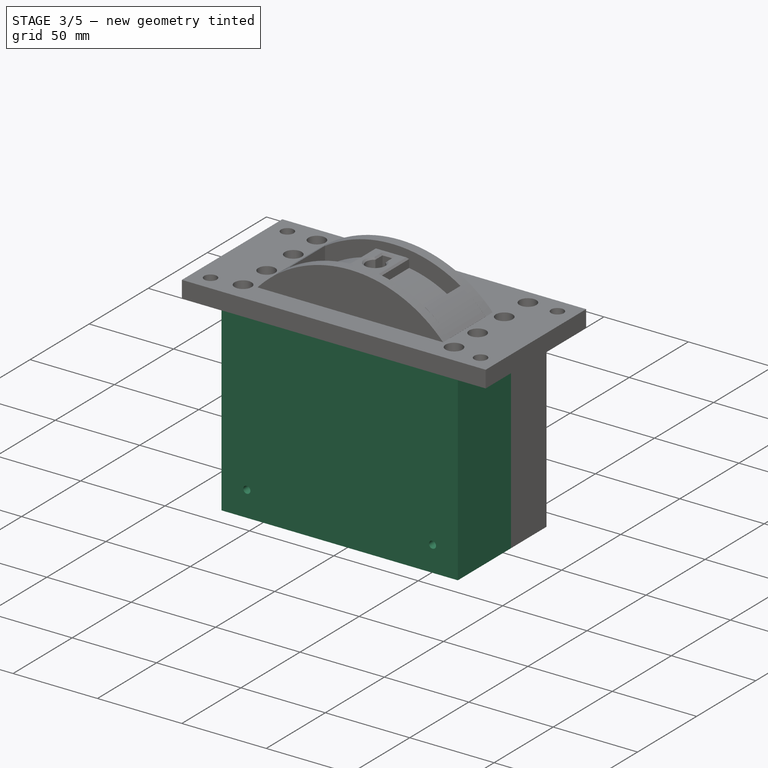
[diagram: stage 3 of 5 — iso view after this stage's code; geometry added in this stage tinted green]
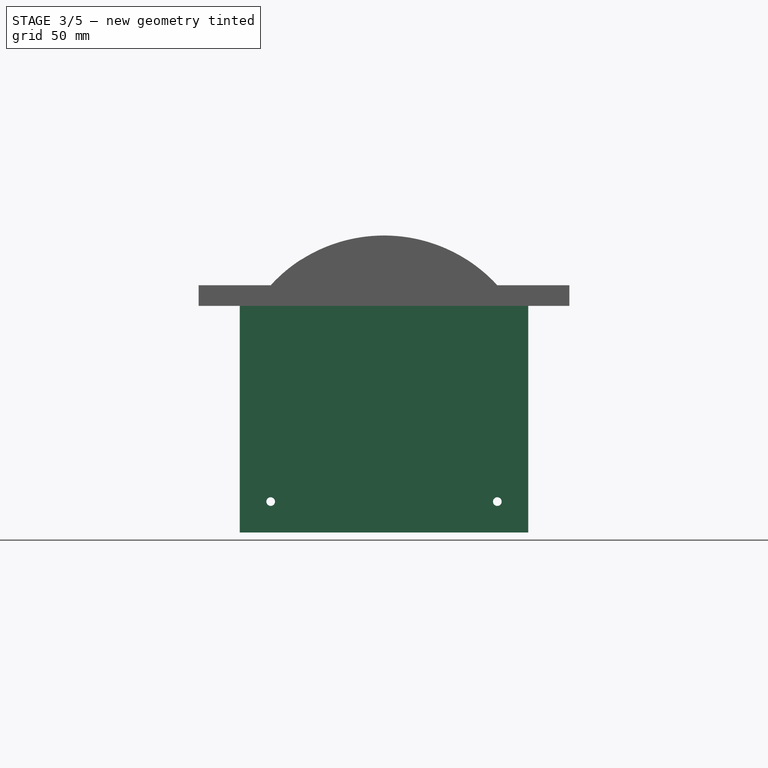
[diagram: stage 3 of 5 — front view after this stage's code; geometry added in this stage tinted green]
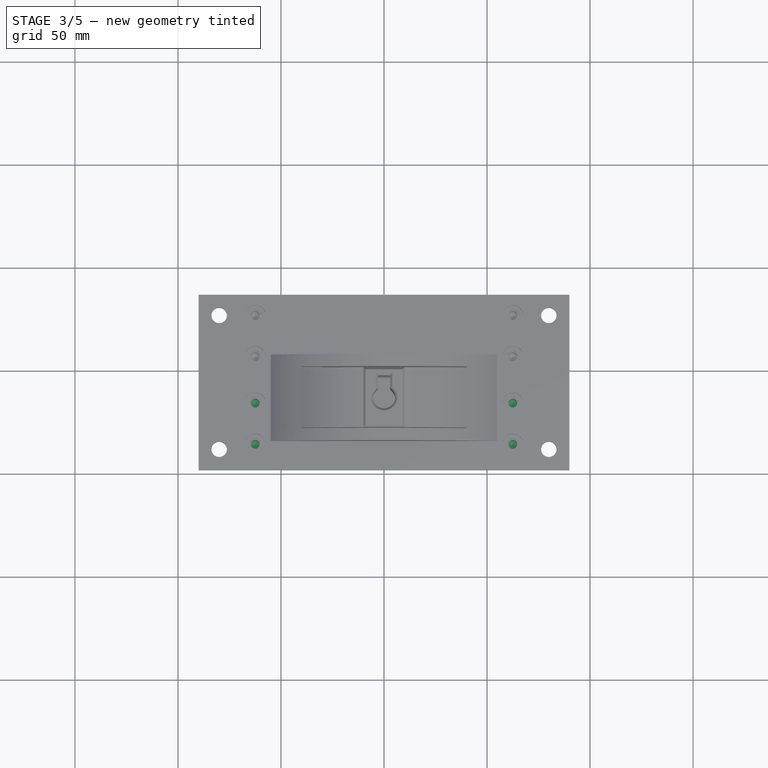
[diagram: stage 3 of 5 — top view after this stage's code; geometry added in this stage tinted green]
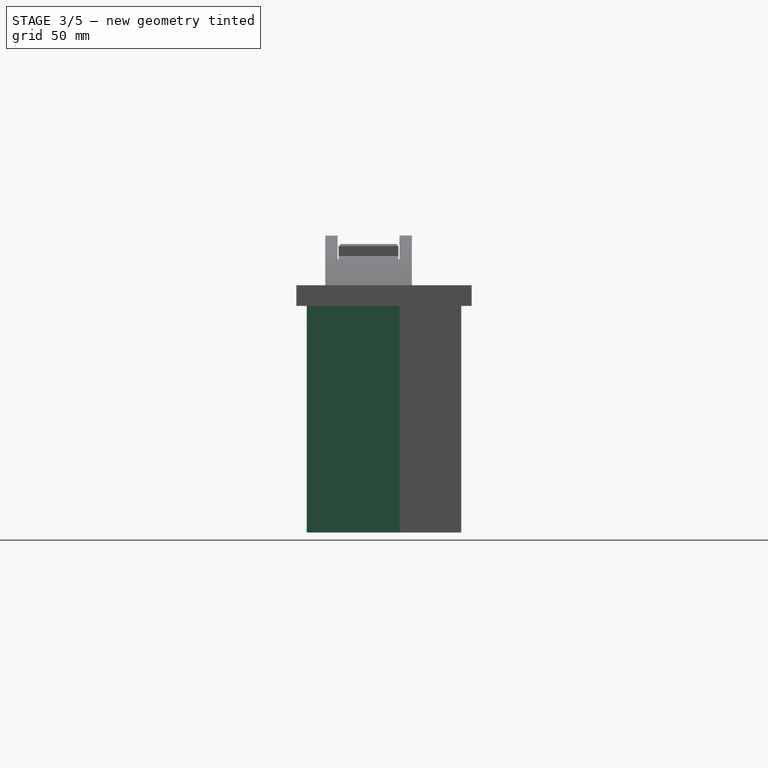
[diagram: stage 3 of 5 — right view after this stage's code; geometry added in this stage tinted green]
FEATURE [Sketcher::SketchObject] Sketch010  label="BaseplateBottom"
  ArcFitTolerance = 1e-06
  AttachmentOffset = pos=(0,0,-5) rot=(0,0,1;0rad)
  AttachmentSupport = -> [XZ_Plane003]
  FullyConstrained = false
  MakeInternals = false
  MapMode = 5
  Placement = pos=(0,5,-1.1e-15) rot=(1,0,0;1.5708rad)
  sketch-geometry (4):
    g0: LineSegment StartX=-70 StartY=-110 StartZ=0 EndX=70 EndY=-110 EndZ=0
    g1: LineSegment StartX=70 StartY=-110 StartZ=0 EndX=70 EndY=0 EndZ=0
    g2: LineSegment StartX=70 StartY=0 StartZ=0 EndX=-70 EndY=0 EndZ=0
    g3: LineSegment StartX=-70 StartY=0 StartZ=0 EndX=-70 EndY=-110 EndZ=0
  constraints (8):
    c: Coincident(g0,g1)
    c: Coincident(g1,g2)
    c: Coincident(g2,g3)
    c: Coincident(g3,g0)
    c: Horizontal(g0)
    c: Horizontal(g2)
    c: Vertical(g1)
    c: Vertical(g3)
FEATURE [PartDesign::Pad] Pad010  label="Baseplate"
  Direction = (0,-1,2e-16)
  Length = 15
  Length2 = 10
  Placement = pos=(0,0,0) rot=(1,0,0;1.5708rad)
  Profile = -> Sketch010
  ReferenceAxis = -> Sketch010 [N_Axis]
  Refine = true
  Reversed = true
  Suppressed = false
  Type = 0
FEATURE [Sketcher::SketchObject] Sketch011  label="KeywaySlotSlider"
  ArcFitTolerance = 1e-06
  AttachmentOffset = pos=(0,0,-20) rot=(0,0,1;0rad)
  AttachmentSupport = -> [XZ_Plane003]
  FullyConstrained = false
  MakeInternals = false
  MapMode = 5
  Placement = pos=(0,20,-4.4e-15) rot=(1,0,0;1.5708rad)
  sketch-geometry (10):
    g0: ArcOfCircle CenterX=0 CenterY=-40 CenterZ=0 NormalX=0 NormalY=0 NormalZ=1 AngleXU=0 Radius=65.2093 StartAngle=2.48122 EndAngle=3.70832
    g1: ArcOfCircle CenterX=0 CenterY=-40 CenterZ=0 NormalX=0 NormalY=0 NormalZ=1 AngleXU=0 Radius=65.2093 StartAngle=5.71613 EndAngle=6.94356
    g2: LineSegment StartX=51.5 StartY=1e-06 StartZ=0 EndX=70 EndY=1e-06 EndZ=0
    g3: LineSegment StartX=70 StartY=1e-06 StartZ=0 EndX=70 EndY=-110 EndZ=0
    g4: LineSegment StartX=70 StartY=-110 StartZ=0 EndX=45 EndY=-110 EndZ=0
    g5: LineSegment StartX=-51.5 StartY=-1e-06 StartZ=0 EndX=-70 EndY=-1e-06 EndZ=0
    g6: LineSegment StartX=-70 StartY=-1e-06 StartZ=0 EndX=-70 EndY=-110 EndZ=0
    g7: LineSegment StartX=-70 StartY=-110 StartZ=0 EndX=-45 EndY=-110 EndZ=0
    g8: LineSegment StartX=-45 StartY=-110 StartZ=0 EndX=45 EndY=-110 EndZ=0
    g9: ArcOfCircle CenterX=0 CenterY=-40 CenterZ=0 NormalX=0 NormalY=0 NormalZ=1 AngleXU=0 Radius=65.2093 StartAngle=3.70832 EndAngle=5.71613
  constraints (17):
    c: Coincident(g2,g1)
    c: Horizontal(g2)
    c: Coincident(g3,g2)
    c: Vertical(g3)
    c: Coincident(g4,g3)
    c: Horizontal(g4)
    c: Coincident(g5,g0)
    c: Horizontal(g5)
    c: Coincident(g6,g5)
    c: Vertical(g6)
    c: Coincident(g7,g6)
    c: Horizontal(g7)
    c: Coincident(g8,g7)
    c: Coincident(g8,g4)
    c: Horizontal(g8)
    c: Coincident(g9,g0)
    c: Coincident(g9,g1)
FEATURE [PartDesign::Pad] Pad011  label="SkidingCoverExtrusion"
  BaseFeature = -> Pad010
  Direction = (0,-1,2e-16)
  Length = 30
  Length2 = 10
  Placement = pos=(0,0,0) rot=(1,0,0;1.5708rad)
  Profile = -> Sketch011
  ReferenceAxis = -> Sketch011 [N_Axis]
  Refine = true
  Reversed = true
  Suppressed = false
  Type = 0
FEATURE [Sketcher::SketchObject] Sketch020  label="KeyPresenceInterlockHoleSketch"
  ArcFitTolerance = 1e-06
  AttachmentOffset = pos=(0,0,-12) rot=(0,0,1;0rad)
  AttachmentSupport = -> [XZ_Plane003]
  FullyConstrained = false
  MakeInternals = false
  MapMode = 5
  Placement = pos=(0,12,-2.7e-15) rot=(1,0,0;1.5708rad)
  sketch-geometry (2):
    g0: Circle CenterX=-12.5 CenterY=-22.5 CenterZ=0 NormalX=0 NormalY=0 NormalZ=1 AngleXU=0 Radius=5.1
    g1: Circle CenterX=12.5 CenterY=-22.5 CenterZ=0 NormalX=0 NormalY=0 NormalZ=1 AngleXU=0 Radius=5.1
  constraints (2):
    c: Equal(g0,g1)
    c: Diameter(g0) = 10.2
FEATURE [PartDesign::Pocket] Pocket004  label="KeyPresenceHoleInterlock"
  BaseFeature = -> Pad011
  Direction = (0,1,-2e-16)
  Length = 21
  Length2 = 5
  Placement = pos=(0,0,0) rot=(1,0,0;1.5708rad)
  Profile = -> Sketch020
  ReferenceAxis = -> Sketch020 [N_Axis]
  Refine = true
  Suppressed = false
  Type = 0
FEATURE [Sketcher::SketchObject] Sketch021  label="CentralRotatingPinHoleSketch"
  ArcFitTolerance = 1e-06
  AttachmentOffset = pos=(0,0,-10) rot=(0,0,1;0rad)
  AttachmentSupport = -> [XZ_Plane003]
  FullyConstrained = false
  MakeInternals = false
  MapMode = 5
  Placement = pos=(0,10,-2.2e-15) rot=(1,0,0;1.5708rad)
  sketch-geometry (1):
    g0: Circle CenterX=0 CenterY=-40 CenterZ=0 NormalX=0 NormalY=0 NormalZ=1 AngleXU=0 Radius=5.1
  constraints (1):
    c: Diameter(g0) = 10.2
FEATURE [PartDesign::Pocket] Pocket005  label="BackBodyWithRotatingPinHole"
  BaseFeature = -> Pocket004
  Direction = (0,1,-2e-16)
  Length = 21
  Length2 = 5
  Placement = pos=(0,0,0) rot=(1,0,0;1.5708rad)
  Profile = -> Sketch021
  ReferenceAxis = -> Sketch021 [N_Axis]
  Refine = true
  Suppressed = false
  Type = 0
FEATURE [Sketcher::SketchObject] Sketch030  label="NotchingRecesses"
  ArcFitTolerance = 1e-06
  AttachmentOffset = pos=(0,0,-20) rot=(0,0,1;0rad)
  AttachmentSupport = -> [XZ_Plane003]
  FullyConstrained = false
  MakeInternals = false
  MapMode = 5
  Placement = pos=(0,20,-4.4e-15) rot=(1,0,0;1.5708rad)
  sketch-geometry (3):
    g0: Circle CenterX=0 CenterY=-60 CenterZ=0 NormalX=0 NormalY=0 NormalZ=1 AngleXU=0 Radius=10
    g1: Circle CenterX=10 CenterY=-57.3205 CenterZ=0 NormalX=0 NormalY=0 NormalZ=1 AngleXU=0 Radius=10
    g2: Circle CenterX=-10 CenterY=-57.3205 CenterZ=0 NormalX=0 NormalY=0 NormalZ=1 AngleXU=0 Radius=10
FEATURE [PartDesign::Hole] Hole002  label="LatchingHoles"
  BaseFeature = -> Pocket005
  CustomThreadClearance = 0
  Depth = 1
  DepthType = 0
  Diameter = 26
  DrillForDepth = false
  DrillPoint = 1
  DrillPointAngle = 110
  HoleCutCountersinkAngle = 90
  HoleCutCustomValues = false
  HoleCutDepth = 0
  HoleCutDiameter = 6.1
  HoleCutType = 0
  ModelThread = false
  Placement = pos=(0,0,0) rot=(1,0,0;1.5708rad)
  Profile = -> Sketch030
  Refine = true
  Reversed = true
  Suppressed = false
  Tapered = false
  TaperedAngle = 90
  ThreadClass = 0
  ThreadDepth = 1
  ThreadDepthType = 0
  ThreadDirection = 0
  ThreadFit = 0
  ThreadSize = 0
  ThreadType = 0
  Threaded = false
  UseCustomThreadClearance = false
FEATURE [PartDesign::Body] Body007  label="ReverserLatchPin"
  AllowCompound = false
  Group = -> [Sketch033,Pad021,Sketch034,Pad022,Sketch035,Pocket008]
  Origin = -> Origin007
  Tip = -> Pocket008
FEATURE [Sketcher::SketchObject] Sketch036  label="LatchCoverBaseSketch"
  ArcFitTolerance = 1e-06
  AttachmentOffset = pos=(0,0,-50) rot=(0,0,1;0rad)
  AttachmentSupport = -> [XZ_Plane008]
  FullyConstrained = false
  MakeInternals = false
  MapMode = 5
  Placement = pos=(0,50,-1.11e-14) rot=(1,0,0;1.5708rad)
  sketch-geometry (8):
    g0: LineSegment StartX=-25 StartY=-40 StartZ=0 EndX=-10 EndY=-40 EndZ=0
    g1: LineSegment StartX=-10 StartY=-40 StartZ=0 EndX=-5 EndY=-50 EndZ=0
    g2: LineSegment StartX=-5 StartY=-50 StartZ=0 EndX=5 EndY=-50 EndZ=0
    g3: LineSegment StartX=5 StartY=-50 StartZ=0 EndX=10 EndY=-40 EndZ=0
    g4: LineSegment StartX=10 StartY=-40 StartZ=0 EndX=25 EndY=-40 EndZ=0
    g5: LineSegment StartX=25 StartY=-40 StartZ=0 EndX=25 EndY=-75 EndZ=0
    g6: LineSegment StartX=25 StartY=-75 StartZ=0 EndX=-25 EndY=-75 EndZ=0
    g7: LineSegment StartX=-25 StartY=-75 StartZ=0 EndX=-25 EndY=-40 EndZ=0
  constraints (14):
    c: Horizontal(g0)
    c: Coincident(g1,g0)
    c: Coincident(g2,g1)
    c: Horizontal(g2)
    c: Coincident(g3,g2)
    c: Coincident(g4,g3)
    c: Horizontal(g4)
    c: Coincident(g5,g4)
    c: Vertical(g5)
    c: Coincident(g6,g5)
    c: Horizontal(g6)
    c: Coincident(g7,g6)
    c: Coincident(g7,g0)
    c: Vertical(g7)
FEATURE [PartDesign::Pad] Pad023  label="LatchPinBase"
  Direction = (0,-1,2e-16)
  Length = 10
  Length2 = 10
  Placement = pos=(0,0,0) rot=(1,0,0;1.5708rad)
  Profile = -> Sketch036
  ReferenceAxis = -> Sketch036 [N_Axis]
  Refine = true
  Reversed = true
  Suppressed = false
  Type = 0
FEATURE [Sketcher::SketchObject] Sketch037  label="LatchPinSpringHolesSketch"
  ArcFitTolerance = 1e-06
  AttachmentOffset = pos=(0,0,-50) rot=(0,0,1;0rad)
  AttachmentSupport = -> [XZ_Plane008]
  FullyConstrained = false
  MakeInternals = false
  MapMode = 5
  Placement = pos=(0,50,-1.11e-14) rot=(1,0,0;1.5708rad)
  sketch-geometry (5):
    g0: Circle CenterX=-3.75 CenterY=-56.25 CenterZ=0 NormalX=0 NormalY=0 NormalZ=1 AngleXU=0 Radius=2.5
    g1: Circle CenterX=3.75 CenterY=-56.25 CenterZ=0 NormalX=0 NormalY=0 NormalZ=1 AngleXU=0 Radius=2.5
    g2: Circle CenterX=0 CenterY=-60 CenterZ=0 NormalX=0 NormalY=0 NormalZ=1 AngleXU=0 Radius=2.5
    g3: Circle CenterX=3.75 CenterY=-63.75 CenterZ=0 NormalX=0 NormalY=0 NormalZ=1 AngleXU=0 Radius=2.5
    g4: Circle CenterX=-3.75 CenterY=-63.75 CenterZ=0 NormalX=0 NormalY=0 NormalZ=1 AngleXU=0 Radius=2.5
FEATURE [PartDesign::Pocket] Pocket009  label="LatchCoverSpringHoles"
  BaseFeature = -> Pad023
  Direction = (0,1,-2e-16)
  Length = 5
  Length2 = 5
  Placement = pos=(0,0,0) rot=(1,0,0;1.5708rad)
  Profile = -> Sketch037
  ReferenceAxis = -> Sketch037 [N_Axis]
  Refine = true
  Suppressed = false
  Type = 0
FEATURE [Sketcher::SketchObject] Sketch038  label="LidScrewHolesSketch"
  ArcFitTolerance = 1e-06
  AttachmentOffset = pos=(0,0,-60) rot=(0,0,1;0rad)
  AttachmentSupport = -> [XZ_Plane008]
  FullyConstrained = false
  MakeInternals = false
  MapMode = 5
  Placement = pos=(0,60,-1.33e-14) rot=(1,0,0;1.5708rad)
  sketch-geometry (4):
    g0: Circle CenterX=-15 CenterY=-50 CenterZ=0 NormalX=0 NormalY=0 NormalZ=1 AngleXU=0 Radius=2.1657
    g1: Circle CenterX=-15 CenterY=-70 CenterZ=0 NormalX=0 NormalY=0 NormalZ=1 AngleXU=0 Radius=1.97202
    g2: Circle CenterX=15 CenterY=-70 CenterZ=0 NormalX=0 NormalY=0 NormalZ=1 AngleXU=0 Radius=1.91453
    g3: Circle CenterX=15 CenterY=-50 CenterZ=0 NormalX=0 NormalY=0 NormalZ=1 AngleXU=0 Radius=1.992
FEATURE [PartDesign::Hole] Hole004  label="LidHoles"
  BaseFeature = -> Pocket009
  CustomThreadClearance = 0
  Depth = 25
  DepthType = 0
  Diameter = 5.8
  DrillForDepth = false
  DrillPoint = 1
  DrillPointAngle = 118
  HoleCutCountersinkAngle = 90
  HoleCutCustomValues = false
  HoleCutDepth = 6.4
  HoleCutDiameter = 13
  HoleCutType = 9
  ModelThread = false
  Placement = pos=(0,0,0) rot=(1,0,0;1.5708rad)
  Profile = -> Sketch038
  Refine = true
  Reversed = true
  Suppressed = false
  Tapered = false
  TaperedAngle = 90
  ThreadClass = 0
  ThreadDepth = 25
  ThreadDepthType = 0
  ThreadDirection = 0
  ThreadFit = 2
  ThreadSize = 13
  ThreadType = 1
  Threaded = false
  UseCustomThreadClearance = false
FEATURE [PartDesign::Hole] Hole007
  BaseFeature = -> Hole002
  CustomThreadClearance = 0
  Depth = 15
  DepthType = 0
  Diameter = 4.2
  DrillForDepth = false
  DrillPoint = 1
  DrillPointAngle = 118
  HoleCutCountersinkAngle = 90
  HoleCutCustomValues = false
  HoleCutDepth = 0
  HoleCutDiameter = 6.1
  HoleCutType = 0
  ModelThread = false
  Placement = pos=(0,0,0) rot=(1,0,0;1.5708rad)
  Profile = -> Sketch041
  Refine = true
  Suppressed = false
  Tapered = false
  TaperedAngle = 90
  ThreadClass = 0
  ThreadDepth = 15
  ThreadDepthType = 0
  ThreadDirection = 0
  ThreadFit = 0
  ThreadSize = 13
  ThreadType = 1
  Threaded = true
  UseCustomThreadClearance = false
FEATURE [Sketcher::SketchObject] Sketch044  label="TopHoles001"
  ArcFitTolerance = 1e-06
  AttachmentSupport = -> [XZ_Plane003]
  FullyConstrained = false
  MakeInternals = false
  MapMode = 5
  Placement = pos=(0,0,0) rot=(1,0,0;1.5708rad)
  sketch-geometry (2):
    g0: Circle CenterX=-55 CenterY=-95 CenterZ=0 NormalX=0 NormalY=0 NormalZ=1 AngleXU=0 Radius=5
    g1: Circle CenterX=55 CenterY=-95 CenterZ=0 NormalX=0 NormalY=0 NormalZ=1 AngleXU=0 Radius=5
FEATURE [PartDesign::Hole] Hole009
  BaseFeature = -> Hole007
  CustomThreadClearance = 0
  Depth = 373.563
  DepthType = 1
  Diameter = 4.2
  DrillForDepth = false
  DrillPoint = 1
  DrillPointAngle = 118
  HoleCutCountersinkAngle = 90
  HoleCutCustomValues = false
  HoleCutDepth = 0
  HoleCutDiameter = 6.1
  HoleCutType = 0
  ModelThread = false
  Placement = pos=(0,0,0) rot=(1,0,0;1.5708rad)
  Profile = -> Sketch044
  Refine = true
  Suppressed = false
  Tapered = false
  TaperedAngle = 90
  ThreadClass = 0
  ThreadDepth = 373.563
  ThreadDepthType = 0
  ThreadDirection = 0
  ThreadFit = 0
  ThreadSize = 13
  ThreadType = 1
  Threaded = true
  UseCustomThreadClearance = false
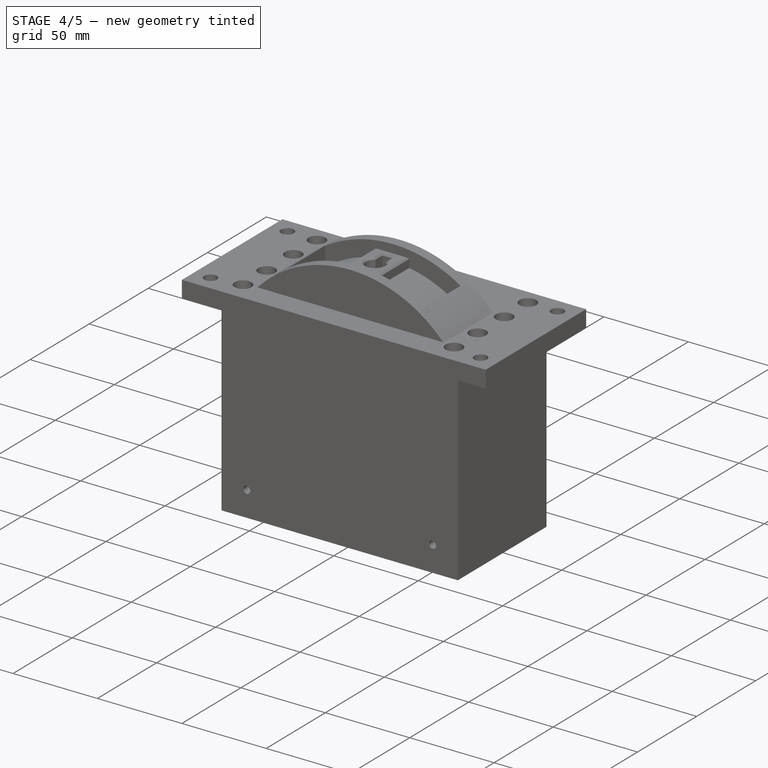
[diagram: stage 4 of 5 — iso view after this stage's code; geometry added in this stage tinted green]
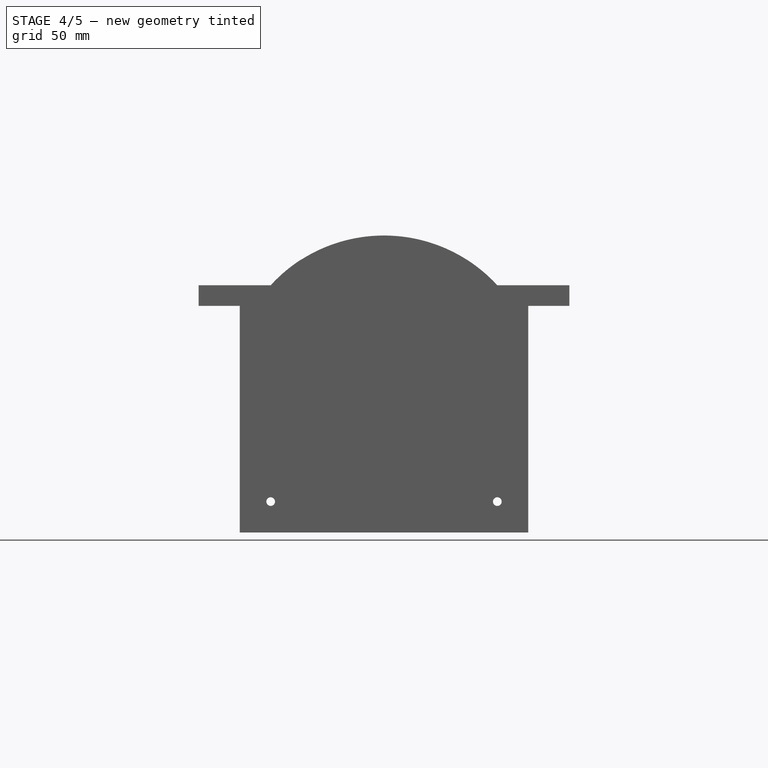
[diagram: stage 4 of 5 — front view after this stage's code; geometry added in this stage tinted green]
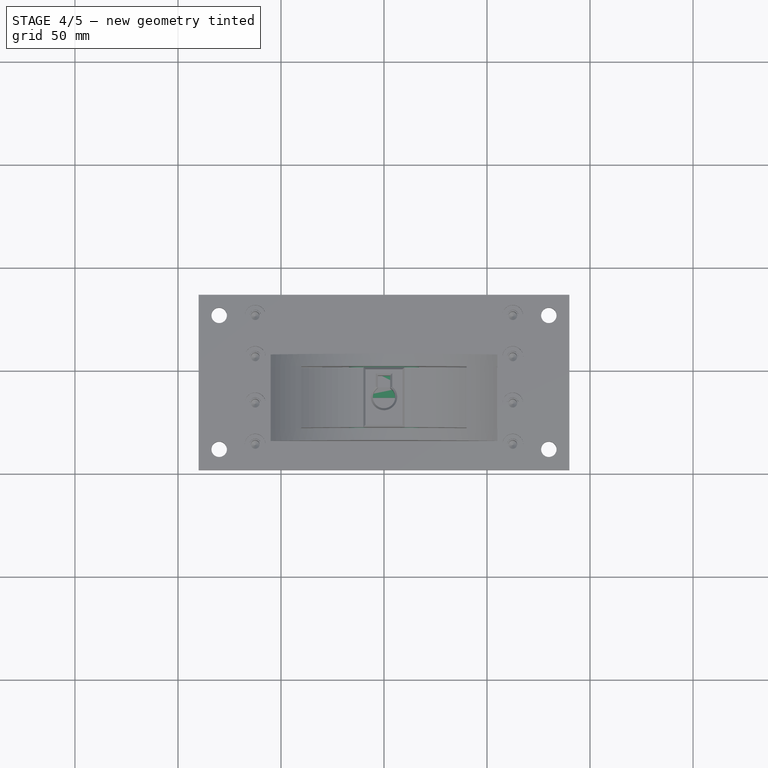
[diagram: stage 4 of 5 — top view after this stage's code; geometry added in this stage tinted green]
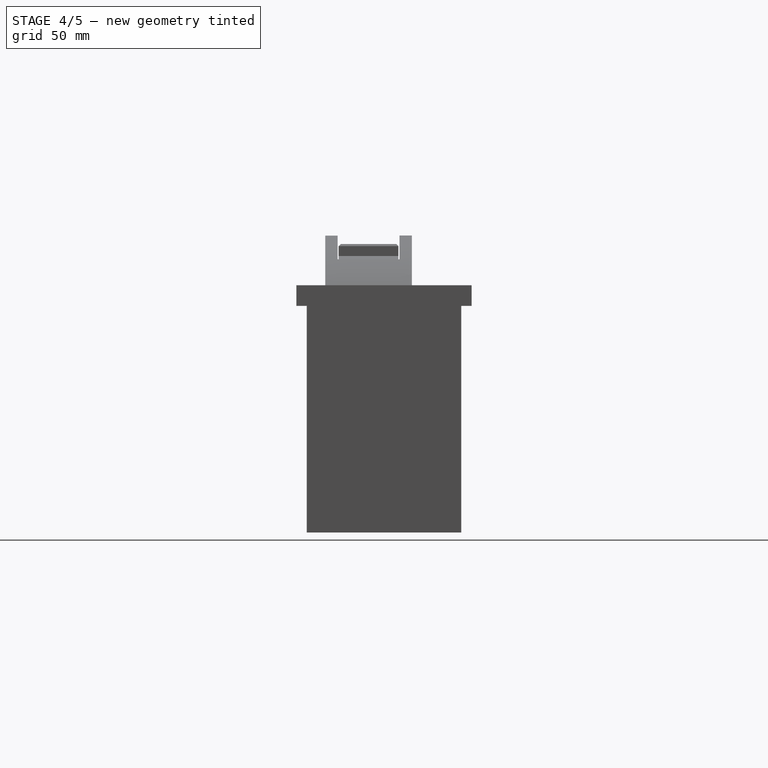
[diagram: stage 4 of 5 — right view after this stage's code; geometry added in this stage tinted green]
FEATURE [Sketcher::SketchObject] Sketch012  label="InterlockFrameExtrusion"
  ArcFitTolerance = 1e-06
  AttachmentOffset = pos=(0,0,0.5) rot=(0,0,1;0rad)
  AttachmentSupport = -> [XY_Plane004]
  FullyConstrained = false
  MakeInternals = false
  MapMode = 5
  Placement = pos=(0,0,0.5) rot=(0,0,1;0rad)
  sketch-geometry (4):
    g0: LineSegment StartX=19.5 StartY=55 StartZ=0 EndX=-19.5 EndY=55 EndZ=0
    g1: LineSegment StartX=19.5 StartY=50 StartZ=0 EndX=19.5 EndY=55 EndZ=0
    g2: LineSegment StartX=-19.5 StartY=55 StartZ=0 EndX=-19.5 EndY=50 EndZ=0
    g3: LineSegment StartX=-19.5 StartY=50 StartZ=0 EndX=19.5 EndY=50 EndZ=0
  constraints (8):
    c: Horizontal(g0)
    c: Coincident(g1,g0)
    c: Vertical(g1)
    c: Coincident(g2,g0)
    c: Vertical(g2)
    c: Coincident(g3,g2)
    c: Coincident(g3,g1)
    c: Horizontal(g3)
FEATURE [PartDesign::Pad] Pad012  label="InterlockBase"
  Direction = (0,0,1)
  Length = 14
  Length2 = 10
  Profile = -> Sketch012
  ReferenceAxis = -> Sketch012 [N_Axis]
  Refine = true
  Suppressed = false
  Type = 0
FEATURE [Sketcher::SketchObject] Sketch013  label="KeywaySketch"
  ArcFitTolerance = 1e-06
  AttachmentOffset = pos=(0,0,-10) rot=(0,0,1;0rad)
  AttachmentSupport = -> [YZ_Plane004]
  FullyConstrained = false
  MakeInternals = false
  MapMode = 5
  Placement = pos=(-10,0,0) rot=(0.57735,0.57735,0.57735;2.0944rad)
  sketch-geometry (6):
    g0: LineSegment StartX=40 StartY=14 StartZ=0 EndX=35 EndY=9 EndZ=0
    g1: LineSegment StartX=35 StartY=9 StartZ=0 EndX=35 EndY=6 EndZ=0
    g2: LineSegment StartX=35 StartY=6 StartZ=0 EndX=40 EndY=1 EndZ=0
    g3: LineSegment StartX=40 StartY=1 StartZ=0 EndX=50 EndY=1 EndZ=0
    g4: LineSegment StartX=40 StartY=14 StartZ=0 EndX=50 EndY=14 EndZ=0
    g5: LineSegment StartX=50 StartY=1 StartZ=0 EndX=50 EndY=14 EndZ=0
  constraints (10):
    c: Coincident(g1,g0)
    c: Vertical(g1)
    c: Coincident(g2,g1)
    c: Coincident(g3,g2)
    c: Horizontal(g3)
    c: Coincident(g4,g0)
    c: Horizontal(g4)
    c: Coincident(g5,g3)
    c: Coincident(g5,g4)
    c: Vertical(g5)
FEATURE [PartDesign::Pad] Pad013  label="InterlockKeyway"
  BaseFeature = -> Pad012
  Direction = (1,0,0)
  Length = 20
  Length2 = 10
  Profile = -> Sketch013
  ReferenceAxis = -> Sketch013 [N_Axis]
  Refine = true
  Suppressed = false
  Type = 0
FEATURE [Sketcher::SketchObject] Sketch014  label="CenterLockPinSketch"
  ArcFitTolerance = 1e-06
  AttachmentOffset = pos=(0,0,-50) rot=(0,0,1;0rad)
  AttachmentSupport = -> [XZ_Plane004]
  FullyConstrained = false
  MakeInternals = false
  MapMode = 5
  Placement = pos=(0,50,-1.11e-14) rot=(1,0,0;1.5708rad)
  sketch-geometry (2):
    g0: Circle CenterX=-12.5 CenterY=7.5 CenterZ=0 NormalX=0 NormalY=0 NormalZ=1 AngleXU=0 Radius=4.5
    g1: Circle CenterX=12.5 CenterY=7.5 CenterZ=0 NormalX=0 NormalY=0 NormalZ=1 AngleXU=0 Radius=4.5
  constraints (2):
    c: Equal(g1,g0)
    c: Diameter(g1) = 9
FEATURE [PartDesign::Pad] Pad014  label="BaseInterlockPins"
  BaseFeature = -> Pad013
  Direction = (0,-1,2e-16)
  Length = 35
  Length2 = 10
  Profile = -> Sketch014
  ReferenceAxis = -> Sketch014 [N_Axis]
  Refine = true
  Suppressed = false
  Type = 0
FEATURE [Sketcher::SketchObject] Sketch024  label="InterlockLidBase"
  ArcFitTolerance = 1e-06
  AttachmentOffset = pos=(0,0,-70) rot=(0,0,1;0rad)
  AttachmentSupport = -> [XZ_Plane005]
  FullyConstrained = false
  MakeInternals = false
  MapMode = 5
  Placement = pos=(0,70,-1.55e-14) rot=(1,0,0;1.5708rad)
  sketch-geometry (10):
    g0: LineSegment StartX=-30 StartY=-20 StartZ=0 EndX=-30 EndY=-35 EndZ=0
    g1: LineSegment StartX=-30 StartY=-35 StartZ=0 EndX=-10 EndY=-35 EndZ=0
    g2: LineSegment StartX=-10 StartY=-35 StartZ=0 EndX=-5 EndY=-30 EndZ=0
    g3: LineSegment StartX=-5 StartY=-30 StartZ=0 EndX=5 EndY=-30 EndZ=0
    g4: LineSegment StartX=5 StartY=-30 StartZ=0 EndX=10 EndY=-35 EndZ=0
    g5: LineSegment StartX=10 StartY=-35 StartZ=0 EndX=30 EndY=-35 EndZ=0
    g6: LineSegment StartX=30 StartY=-35 StartZ=0 EndX=30 EndY=-20 EndZ=0
    g7: LineSegment StartX=30 StartY=-20 StartZ=0 EndX=20 EndY=-10 EndZ=0
    g8: LineSegment StartX=20 StartY=-10 StartZ=0 EndX=-20 EndY=-10 EndZ=0
    g9: LineSegment StartX=-20 StartY=-10 StartZ=0 EndX=-30 EndY=-20 EndZ=0
  constraints (16):
    c: Vertical(g0)
    c: Coincident(g1,g0)
    c: Horizontal(g1)
    c: Coincident(g2,g1)
    c: Coincident(g3,g2)
    c: Horizontal(g3)
    c: Coincident(g4,g3)
    c: Coincident(g5,g4)
    c: Horizontal(g5)
    c: Coincident(g6,g5)
    c: Vertical(g6)
    c: Coincident(g7,g6)
    c: Coincident(g8,g7)
    c: Horizontal(g8)
    c: Coincident(g9,g8)
    c: Coincident(g9,g0)
FEATURE [PartDesign::Pad] Pad017  label="TopLidBase"
  Direction = (0,-1,2e-16)
  Length = 5
  Length2 = 10
  Placement = pos=(0,0,0) rot=(1,0,0;1.5708rad)
  Profile = -> Sketch024
  ReferenceAxis = -> Sketch024 [N_Axis]
  Refine = true
  Reversed = true
  Suppressed = false
  Type = 0
FEATURE [Sketcher::SketchObject] Sketch025  label="TopLidScrewHoles"
  ArcFitTolerance = 1e-06
  AttachmentOffset = pos=(0,0,-75) rot=(0,0,1;0rad)
  AttachmentSupport = -> [XZ_Plane005]
  FullyConstrained = false
  MakeInternals = false
  MapMode = 5
  Placement = pos=(0,75,-1.67e-14) rot=(1,0,0;1.5708rad)
  sketch-geometry (4):
    g0: Circle CenterX=25 CenterY=-22.5 CenterZ=0 NormalX=0 NormalY=0 NormalZ=1 AngleXU=0 Radius=1.48563
    g1: Circle CenterX=25 CenterY=-30 CenterZ=0 NormalX=0 NormalY=0 NormalZ=1 AngleXU=0 Radius=1.91319
    g2: Circle CenterX=-25 CenterY=-30 CenterZ=0 NormalX=0 NormalY=0 NormalZ=1 AngleXU=0 Radius=1.61102
    g3: Circle CenterX=-25 CenterY=-22.5 CenterZ=0 NormalX=0 NormalY=0 NormalZ=1 AngleXU=0 Radius=2.22493
FEATURE [PartDesign::Hole] Hole001  label="ScrewHoles001"
  BaseFeature = -> Pad017
  CustomThreadClearance = 0
  Depth = 25
  DepthType = 0
  Diameter = 3.6
  DrillForDepth = false
  DrillPoint = 1
  DrillPointAngle = 118
  HoleCutCountersinkAngle = 90
  HoleCutCustomValues = false
  HoleCutDepth = 0.5
  HoleCutDiameter = 7.5
  HoleCutType = 2
  ModelThread = false
  Placement = pos=(0,0,0) rot=(1,0,0;1.5708rad)
  Profile = -> Sketch025
  Refine = true
  Reversed = true
  Suppressed = false
  Tapered = false
  TaperedAngle = 90
  ThreadClass = 0
  ThreadDepth = 25
  ThreadDepthType = 0
  ThreadDirection = 0
  ThreadFit = 2
  ThreadSize = 9
  ThreadType = 1
  Threaded = false
  UseCustomThreadClearance = false
FEATURE [Sketcher::SketchObject] Sketch026  label="InnerPlate"
  ArcFitTolerance = 1e-06
  AttachmentOffset = pos=(0,0,-70) rot=(0,0,1;0rad)
  AttachmentSupport = -> [XZ_Plane005]
  FullyConstrained = false
  MakeInternals = false
  MapMode = 5
  Placement = pos=(0,70,-1.55e-14) rot=(1,0,0;1.5708rad)
  sketch-geometry (4):
    g0: LineSegment StartX=-20 StartY=-15 StartZ=0 EndX=-20 EndY=-30 EndZ=0
    g1: LineSegment StartX=-20 StartY=-30 StartZ=0 EndX=20 EndY=-30 EndZ=0
    g2: LineSegment StartX=20 StartY=-30 StartZ=0 EndX=20 EndY=-15 EndZ=0
    g3: LineSegment StartX=20 StartY=-15 StartZ=0 EndX=-20 EndY=-15 EndZ=0
  constraints (8):
    c: Coincident(g0,g1)
    c: Coincident(g1,g2)
    c: Coincident(g2,g3)
    c: Coincident(g3,g0)
    c: Vertical(g0)
    c: Vertical(g2)
    c: Horizontal(g1)
    c: Horizontal(g3)
FEATURE [PartDesign::Pad] Pad018  label="LandingPad"
  BaseFeature = -> Hole001
  Direction = (0,-1,2e-16)
  Length = 3
  Length2 = 10
  Placement = pos=(0,0,0) rot=(1,0,0;1.5708rad)
  Profile = -> Sketch026
  ReferenceAxis = -> Sketch026 [N_Axis]
  Refine = true
  Suppressed = false
  Type = 0
FEATURE [Sketcher::SketchObject] Sketch027  label="TopSpringRecepticles"
  ArcFitTolerance = 1e-06
  AttachmentOffset = pos=(0,0,-72) rot=(0,0,1;0rad)
  AttachmentSupport = -> [XZ_Plane005]
  FullyConstrained = false
  MakeInternals = false
  MapMode = 5
  Placement = pos=(0,72,-1.6e-14) rot=(1,0,0;1.5708rad)
  sketch-geometry (3):
    g0: Circle CenterX=-12.5 CenterY=-22.5 CenterZ=0 NormalX=0 NormalY=0 NormalZ=1 AngleXU=0 Radius=2.5
    g1: Circle CenterX=0 CenterY=-22.5 CenterZ=0 NormalX=0 NormalY=0 NormalZ=1 AngleXU=0 Radius=2.5
    g2: Circle CenterX=12.5 CenterY=-22.5 CenterZ=0 NormalX=0 NormalY=0 NormalZ=1 AngleXU=0 Radius=2.5
FEATURE [PartDesign::Pocket] Pocket006  label="SpringRecepticle"
  BaseFeature = -> Pad018
  Direction = (0,1,-2e-16)
  Length = 5
  Length2 = 5
  Placement = pos=(0,0,0) rot=(1,0,0;1.5708rad)
  Profile = -> Sketch027
  ReferenceAxis = -> Sketch027 [N_Axis]
  Refine = true
  Reversed = true
  Suppressed = false
  Type = 0
FEATURE [Sketcher::SketchObject] Sketch033  label="PinLatchTip"
  ArcFitTolerance = 1e-06
  AttachmentOffset = pos=(0,0,-20) rot=(0,0,1;0rad)
  AttachmentSupport = -> [XZ_Plane007]
  FullyConstrained = false
  MakeInternals = false
  MapMode = 5
  Placement = pos=(0,20,-4.4e-15) rot=(1,0,0;1.5708rad)
  sketch-geometry (1):
    g0: Circle CenterX=0 CenterY=-60 CenterZ=0 NormalX=0 NormalY=0 NormalZ=1 AngleXU=0 Radius=9.75
  constraints (1):
    c: Diameter(g0) = 19.5
FEATURE [PartDesign::Pad] Pad021  label="PinTip"
  Direction = (0,-1,2e-16)
  Length = 9
  Length2 = 10
  Placement = pos=(0,0,0) rot=(1,0,0;1.5708rad)
  Profile = -> Sketch033
  ReferenceAxis = -> Sketch033 [N_Axis]
  Refine = true
  Suppressed = false
  TaperAngle = -47
  Type = 0
FEATURE [Sketcher::SketchObject] Sketch034  label="PinBodySketch"
  ArcFitTolerance = 1e-06
  AttachmentOffset = pos=(0,0,-20) rot=(0,0,1;0rad)
  AttachmentSupport = -> [XZ_Plane007]
  FullyConstrained = false
  MakeInternals = false
  MapMode = 5
  Placement = pos=(0,20,-4.4e-15) rot=(1,0,0;1.5708rad)
  sketch-geometry (1):
    g0: Circle CenterX=0 CenterY=-60 CenterZ=0 NormalX=0 NormalY=0 NormalZ=1 AngleXU=0 Radius=9.75
  constraints (1):
    c: Diameter(g0) = 19.5
FEATURE [PartDesign::Pad] Pad022  label="PinBody"
  BaseFeature = -> Pad021
  Direction = (0,-1,2e-16)
  Length = 24
  Length2 = 10
  Placement = pos=(0,0,0) rot=(1,0,0;1.5708rad)
  Profile = -> Sketch034
  ReferenceAxis = -> Sketch034 [N_Axis]
  Refine = true
  Reversed = true
  Suppressed = false
  Type = 0
FEATURE [Sketcher::SketchObject] Sketch035  label="SpringRecessSketch"
  ArcFitTolerance = 1e-06
  AttachmentOffset = pos=(0,0,-44) rot=(0,0,1;0rad)
  AttachmentSupport = -> [XZ_Plane007]
  FullyConstrained = false
  MakeInternals = false
  MapMode = 5
  Placement = pos=(0,44,-9.8e-15) rot=(1,0,0;1.5708rad)
  sketch-geometry (5):
    g0: Circle CenterX=-3.75 CenterY=-56.25 CenterZ=0 NormalX=0 NormalY=0 NormalZ=1 AngleXU=0 Radius=2.5
    g1: Circle CenterX=3.75 CenterY=-56.25 CenterZ=0 NormalX=0 NormalY=0 NormalZ=1 AngleXU=0 Radius=2.5
    g2: Circle CenterX=3.75 CenterY=-63.75 CenterZ=0 NormalX=0 NormalY=0 NormalZ=1 AngleXU=0 Radius=2.5
    g3: Circle CenterX=-3.75 CenterY=-63.75 CenterZ=0 NormalX=0 NormalY=0 NormalZ=1 AngleXU=0 Radius=2.5
    g4: Circle CenterX=0 CenterY=-60 CenterZ=0 NormalX=0 NormalY=0 NormalZ=1 AngleXU=0 Radius=2.5
FEATURE [PartDesign::Pocket] Pocket008  label="PinSpringRecess"
  BaseFeature = -> Pad022
  Direction = (0,1,-2e-16)
  Length = 10
  Length2 = 5
  Placement = pos=(0,0,0) rot=(1,0,0;1.5708rad)
  Profile = -> Sketch035
  ReferenceAxis = -> Sketch035 [N_Axis]
  Refine = true
  Reversed = true
  Suppressed = false
  Type = 0
FEATURE [Sketcher::SketchObject] Sketch039  label="LimitSwitchSketch"
  ArcFitTolerance = 1e-06
  AttachmentOffset = pos=(0,0,-50) rot=(0,0,1;0rad)
  AttachmentSupport = -> [XZ_Plane008]
  FullyConstrained = false
  MakeInternals = false
  MapMode = 5
  Placement = pos=(0,50,-1.11e-14) rot=(1,0,0;1.5708rad)
  sketch-geometry (4):
    g0: LineSegment StartX=-2.5 StartY=-72.5 StartZ=0 EndX=-2.5 EndY=-95 EndZ=0
    g1: LineSegment StartX=-2.5 StartY=-95 StartZ=0 EndX=2.5 EndY=-95 EndZ=0
    g2: LineSegment StartX=2.5 StartY=-95 StartZ=0 EndX=2.5 EndY=-72.5 EndZ=0
    g3: LineSegment StartX=2.5 StartY=-72.5 StartZ=0 EndX=-2.5 EndY=-72.5 EndZ=0
  constraints (8):
    c: Coincident(g0,g1)
    c: Coincident(g1,g2)
    c: Coincident(g2,g3)
    c: Coincident(g3,g0)
    c: Vertical(g0)
    c: Vertical(g2)
    c: Horizontal(g1)
    c: Horizontal(g3)
FEATURE [PartDesign::Pad] Pad024  label="LimitSwitchTrigger"
  BaseFeature = -> Hole004
  Direction = (0,-1,2e-16)
  Length = 25
  Length2 = 10
  Placement = pos=(0,0,0) rot=(1,0,0;1.5708rad)
  Profile = -> Sketch039
  ReferenceAxis = -> Sketch039 [N_Axis]
  Refine = true
  Reversed = true
  Suppressed = false
  Type = 0
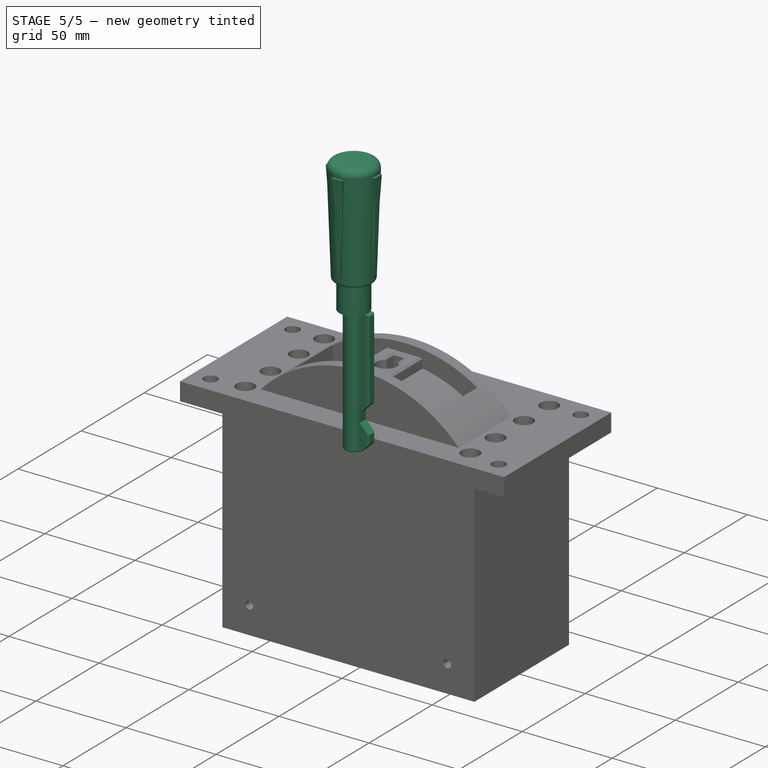
[diagram: stage 5 of 5 — iso view after this stage's code; geometry added in this stage tinted green]
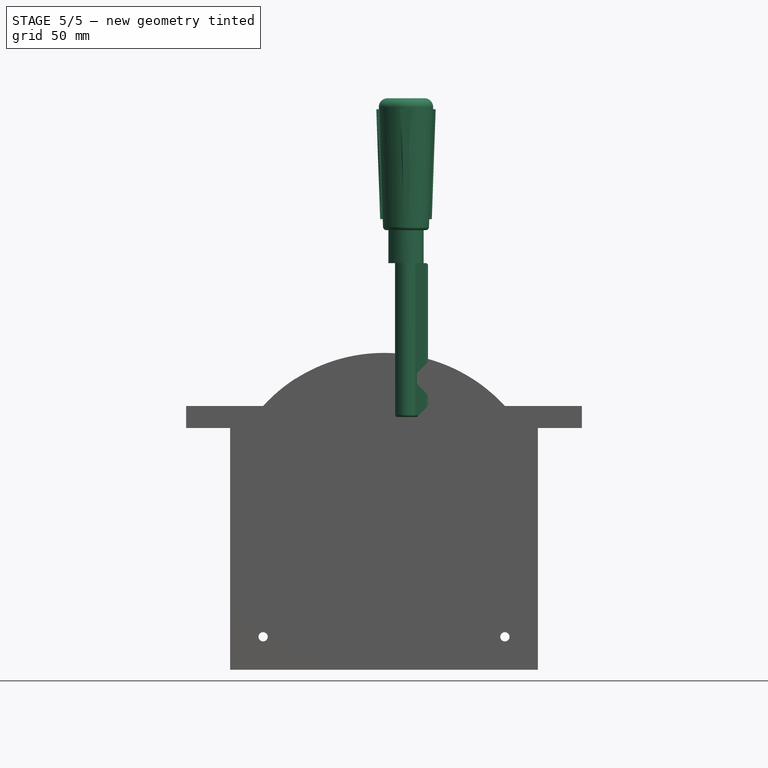
[diagram: stage 5 of 5 — front view after this stage's code; geometry added in this stage tinted green]
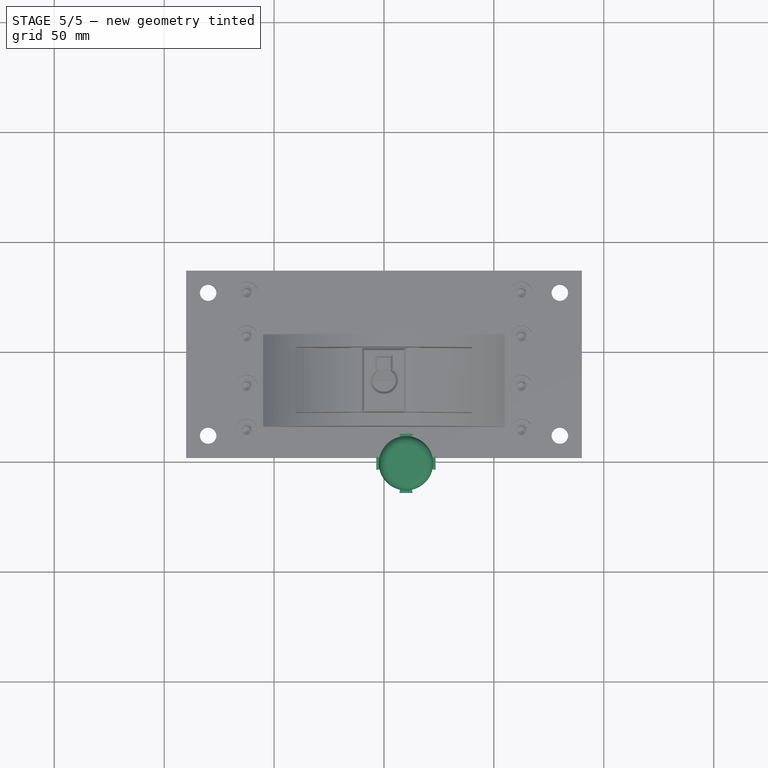
[diagram: stage 5 of 5 — top view after this stage's code; geometry added in this stage tinted green]
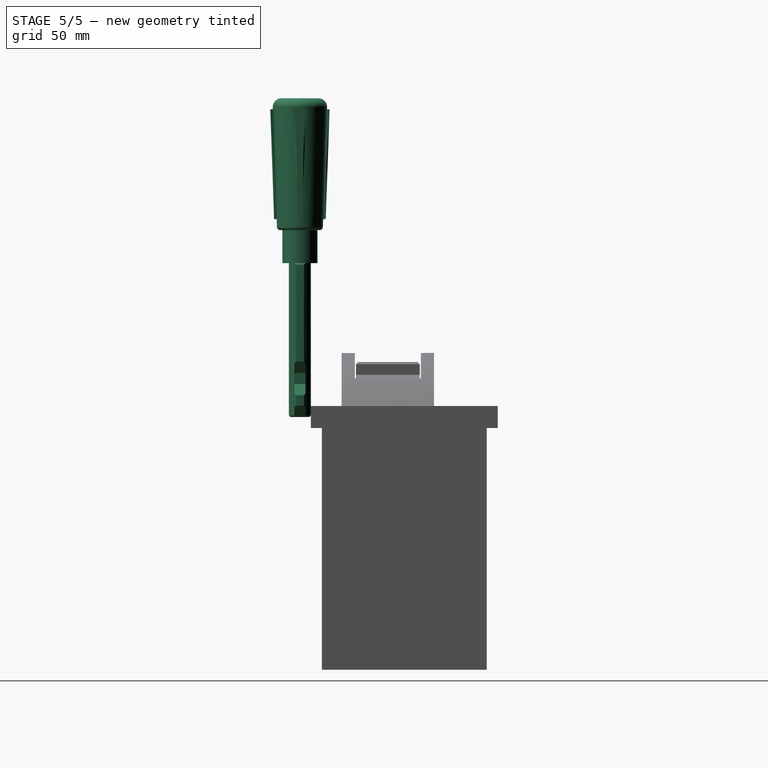
[diagram: stage 5 of 5 — right view after this stage's code; geometry added in this stage tinted green]
FEATURE [Sketcher::SketchObject] Sketch  label="ReverserHandleKeySketch"
  ArcFitTolerance = 1e-06
  AttachmentOffset = pos=(0,0,2.5) rot=(0,0,1;0rad)
  AttachmentSupport = -> [XZ_Plane]
  FullyConstrained = false
  MakeInternals = false
  MapMode = 5
  Placement = pos=(0,-2.5,6e-16) rot=(1,0,0;1.5708rad)
  sketch-geometry (9):
    g0: LineSegment StartX=20 StartY=75 StartZ=0 EndX=10 EndY=75 EndZ=0
    g1: LineSegment StartX=10 StartY=75 StartZ=0 EndX=10 EndY=5 EndZ=0
    g2: LineSegment StartX=20 StartY=30 StartZ=0 EndX=20 EndY=75 EndZ=0
    g3: LineSegment StartX=15 StartY=20 StartZ=0 EndX=20 EndY=15 EndZ=0
    g4: LineSegment StartX=15 StartY=20 StartZ=0 EndX=15 EndY=25 EndZ=0
    g5: LineSegment StartX=15 StartY=25 StartZ=0 EndX=20 EndY=30 EndZ=0
    g6: LineSegment StartX=20 StartY=15 StartZ=0 EndX=20 EndY=10 EndZ=0
    g7: LineSegment StartX=20 StartY=10 StartZ=0 EndX=15 EndY=5 EndZ=0
    g8: LineSegment StartX=15 StartY=5 StartZ=0 EndX=10 EndY=5 EndZ=0
  constraints (15):
    c: Coincident(g0,g1)
    c: Vertical(g1)
    c: Horizontal(g0)
    c: Coincident(g2,g0)
    c: Vertical(g2)
    c: Coincident(g4,g3)
    c: Vertical(g4)
    c: Coincident(g5,g4)
    c: Coincident(g5,g2)
    c: Coincident(g6,g3)
    c: Vertical(g6)
    c: Coincident(g7,g6)
    c: Coincident(g8,g7)
    c: Coincident(g8,g1)
    c: Horizontal(g8)
FEATURE [PartDesign::Pad] Pad  label="ReverserHandleKey"
  Direction = (0,-1,2e-16)
  Length = 5
  Length2 = 10
  Placement = pos=(0,0,0) rot=(1,0,0;1.5708rad)
  Profile = -> Sketch
  ReferenceAxis = -> Sketch [N_Axis]
  Refine = true
  Suppressed = false
  Type = 0
FEATURE [Sketcher::SketchObject] Sketch001  label="HandleBaseLeverSketch"
  ArcFitTolerance = 1e-06
  AttachmentOffset = pos=(0,0,75) rot=(0,0,1;0rad)
  AttachmentSupport = -> [XY_Plane]
  FullyConstrained = false
  MakeInternals = false
  MapMode = 5
  Placement = pos=(0,0,75) rot=(0,0,1;0rad)
  sketch-geometry (1):
    g0: Circle CenterX=10 CenterY=-5 CenterZ=0 NormalX=0 NormalY=0 NormalZ=1 AngleXU=0 Radius=8
  constraints (1):
    c: Diameter(g0) = 16
FEATURE [PartDesign::Pad] Pad001  label="ReverserHandleBaseShaft"
  BaseFeature = -> Pad
  Direction = (0,0,1)
  Length = 75
  Length2 = 10
  Placement = pos=(0,0,0) rot=(1,0,0;1.5708rad)
  Profile = -> Sketch001
  ReferenceAxis = -> Sketch001 [N_Axis]
  Refine = true
  Suppressed = false
  Type = 0
FEATURE [Sketcher::SketchObject] Sketch002  label="RevererHandleTopSketch"
  ArcFitTolerance = 1e-06
  AttachmentOffset = pos=(0,0,150) rot=(0,0,1;0rad)
  AttachmentSupport = -> [XY_Plane]
  FullyConstrained = false
  MakeInternals = false
  MapMode = 5
  Placement = pos=(0,0,150) rot=(0,0,1;0rad)
  sketch-geometry (1):
    g0: Circle CenterX=10 CenterY=-5 CenterZ=0 NormalX=0 NormalY=0 NormalZ=1 AngleXU=0 Radius=12.5
  constraints (1):
    c: Diameter(g0) = 25
FEATURE [PartDesign::Pad] Pad002  label="ReverserHandleTop"
  BaseFeature = -> Pad001
  Direction = (0,0,1)
  Length = 60
  Length2 = 10
  Placement = pos=(0,0,0) rot=(1,0,0;1.5708rad)
  Profile = -> Sketch002
  ReferenceAxis = -> Sketch002 [N_Axis]
  Refine = true
  Reversed = true
  Suppressed = false
  TaperAngle = -2
  Type = 0
FEATURE [Sketcher::SketchObject] Sketch003
  ArcFitTolerance = 1e-06
  AttachmentOffset = pos=(0,0,145) rot=(0,0,1;0rad)
  AttachmentSupport = -> [XY_Plane]
  FullyConstrained = false
  MakeInternals = false
  MapMode = 5
  Placement = pos=(0,0,145) rot=(0,0,1;0rad)
  sketch-geometry (16):
    g0: LineSegment StartX=11.5 StartY=-4 StartZ=0 EndX=11.5 EndY=-6 EndZ=0
    g1: LineSegment StartX=11.5 StartY=-6 StartZ=0 EndX=23.5 EndY=-8 EndZ=0
    g2: LineSegment StartX=23.5 StartY=-8 StartZ=0 EndX=23.5 EndY=-2 EndZ=0
    g3: LineSegment StartX=23.5 StartY=-2 StartZ=0 EndX=11.5 EndY=-4 EndZ=0
    g4: LineSegment StartX=11 StartY=-6.5 StartZ=0 EndX=9 EndY=-6.5 EndZ=0
    g5: LineSegment StartX=9 StartY=-6.5 StartZ=0 EndX=7 EndY=-18.5 EndZ=0
    g6: LineSegment StartX=7 StartY=-18.5 StartZ=0 EndX=13 EndY=-18.5 EndZ=0
    g7: LineSegment StartX=13 StartY=-18.5 StartZ=0 EndX=11 EndY=-6.5 EndZ=0
    g8: LineSegment StartX=8.5 StartY=-6 StartZ=0 EndX=8.5 EndY=-4 EndZ=0
    g9: LineSegment StartX=8.5 StartY=-4 StartZ=0 EndX=-3.5 EndY=-2 EndZ=0
    g10: LineSegment StartX=-3.5 StartY=-2 StartZ=0 EndX=-3.5 EndY=-8 EndZ=0
    g11: LineSegment StartX=-3.5 StartY=-8 StartZ=0 EndX=8.5 EndY=-6 EndZ=0
    g12: LineSegment StartX=9 StartY=-3.5 StartZ=0 EndX=11 EndY=-3.5 EndZ=0
    g13: LineSegment StartX=11 StartY=-3.5 StartZ=0 EndX=13 EndY=8.5 EndZ=0
    g14: LineSegment StartX=13 StartY=8.5 StartZ=0 EndX=7 EndY=8.5 EndZ=0
    g15: LineSegment StartX=7 StartY=8.5 StartZ=0 EndX=9 EndY=-3.5 EndZ=0
  constraints (16):
    c: Coincident(g0,g1)
    c: Coincident(g1,g2)
    c: Coincident(g2,g3)
    c: Coincident(g3,g0)
    c: Coincident(g4,g5)
    c: Coincident(g8,g9)
    c: Coincident(g12,g13)
    c: Coincident(g5,g6)
    c: Coincident(g9,g10)
    c: Coincident(g13,g14)
    c: Coincident(g6,g7)
    c: Coincident(g10,g11)
    c: Coincident(g14,g15)
    c: Coincident(g7,g4)
    c: Coincident(g11,g8)
    c: Coincident(g15,g12)
FEATURE [Sketcher::SketchObject] Sketch004
  ArcFitTolerance = 1e-06
  AttachmentOffset = pos=(0,0,5) rot=(0,0,1;0rad)
  AttachmentSupport = -> [XY_Plane]
  FullyConstrained = false
  MakeInternals = false
  MapMode = 5
  Placement = pos=(0,0,5) rot=(0,0,1;0rad)
  sketch-geometry (1):
    g0: Circle CenterX=10 CenterY=-5 CenterZ=0 NormalX=0 NormalY=0 NormalZ=1 AngleXU=0 Radius=5
FEATURE [PartDesign::Pad] Pad003  label="KeywayCylinder"
  BaseFeature = -> Pad002
  Direction = (0,0,1)
  Length = 75
  Length2 = 10
  Placement = pos=(0,0,0) rot=(1,0,0;1.5708rad)
  Profile = -> Sketch004
  ReferenceAxis = -> Sketch004 [N_Axis]
  Refine = true
  Suppressed = false
  Type = 0
FEATURE [PartDesign::Pad] Pad004
  BaseFeature = -> Pad003
  Direction = (0,0,1)
  Length = 50
  Length2 = 10
  Placement = pos=(0,0,0) rot=(1,0,0;1.5708rad)
  Profile = -> Sketch003
  ReferenceAxis = -> Sketch003 [N_Axis]
  Refine = true
  Reversed = true
  Suppressed = false
  TaperAngle = -2
  Type = 0
  expr: Length = 50
FEATURE [PartDesign::Fillet] Fillet  label="HandleTop"
  Base = -> Pad004 [Edge44]
  BaseFeature = -> Pad004
  Placement = pos=(0,0,0) rot=(1,0,0;1.5708rad)
  Radius = 4
  Refine = true
  SupportTransform = false
  Suppressed = false
  UseAllEdges = false
FEATURE [PartDesign::Fillet] Fillet001  label="MiddleHandle"
  Base = -> Fillet [Edge10]
  BaseFeature = -> Fillet
  Placement = pos=(0,0,0) rot=(1,0,0;1.5708rad)
  Radius = 1.5
  Refine = true
  SupportTransform = false
  Suppressed = false
  UseAllEdges = false
FEATURE [PartDesign::Fillet] Fillet002  label="RoundedBase"
  Base = -> Fillet001 [Face43,Face39,Face45]
  BaseFeature = -> Fillet001
  Placement = pos=(0,0,0) rot=(1,0,0;1.5708rad)
  Radius = 1
  Refine = true
  SupportTransform = false
  Suppressed = false
  UseAllEdges = false
FEATURE [PartDesign::Chamfer] Chamfer  label="InterlockChamfer"
  Angle = 45
  Base = -> Pad014 [Edge43,Edge31,Face2,Face3]
  BaseFeature = -> Pad014
  ChamferType = 0
  FlipDirection = false
  Refine = true
  Size = 2
  Size2 = 1
  SupportTransform = false
  Suppressed = false
  UseAllEdges = false
FEATURE [Sketcher::SketchObject] Sketch015  label="SpringHoleSketch"
  ArcFitTolerance = 1e-06
  AttachmentOffset = pos=(0,0,-55) rot=(0,0,1;0rad)
  AttachmentSupport = -> [XZ_Plane004]
  FullyConstrained = false
  MakeInternals = false
  MapMode = 5
  Placement = pos=(0,55,-1.22e-14) rot=(1,0,0;1.5708rad)
  sketch-geometry (3):
    g0: Circle CenterX=-12.5 CenterY=7.5 CenterZ=0 NormalX=0 NormalY=0 NormalZ=1 AngleXU=0 Radius=2.5
    g1: Circle CenterX=0 CenterY=7.5 CenterZ=0 NormalX=0 NormalY=0 NormalZ=1 AngleXU=0 Radius=2.5
    g2: Circle CenterX=12.5 CenterY=7.5 CenterZ=0 NormalX=0 NormalY=0 NormalZ=1 AngleXU=0 Radius=2.5
FEATURE [PartDesign::Pocket] Pocket  label="InterlockWithSpringHoles"
  BaseFeature = -> Chamfer
  Direction = (0,1,-2e-16)
  Length = 10
  Length2 = 5
  Profile = -> Sketch015
  ReferenceAxis = -> Sketch015 [N_Axis]
  Refine = true
  Reversed = true
  Suppressed = false
  Type = 0
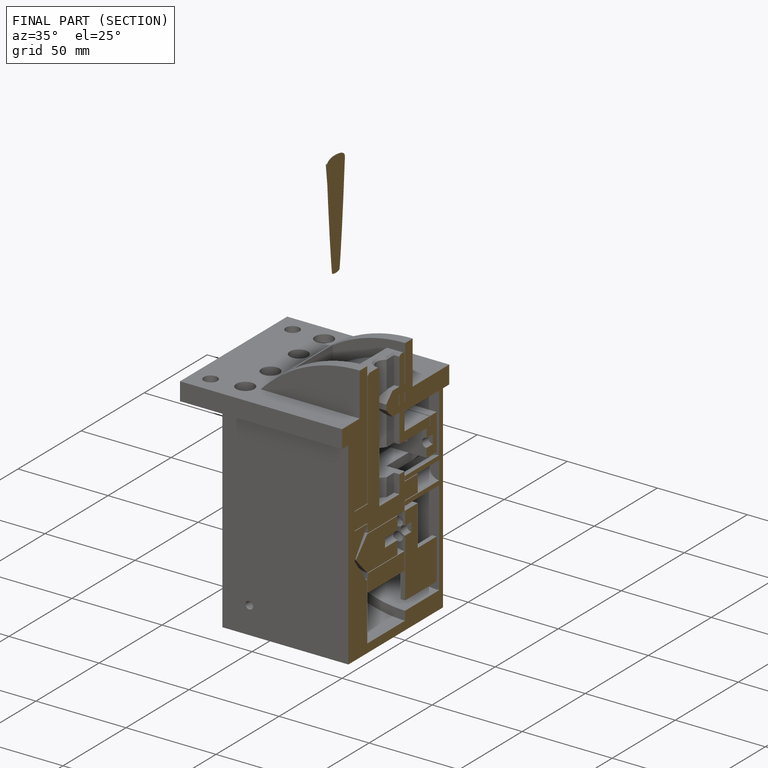
[diagram: finished part — half-section view (interior)]
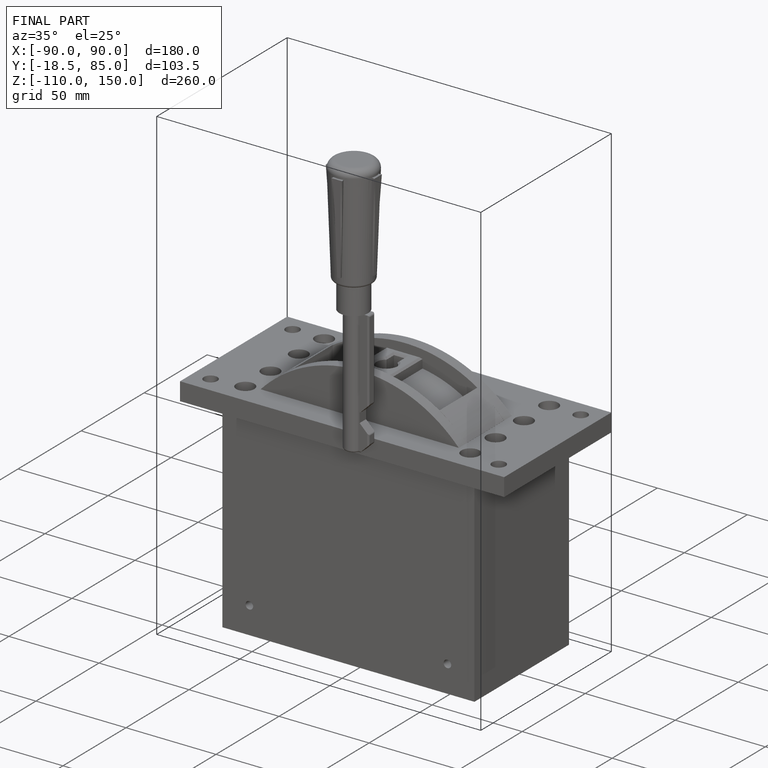
[diagram: finished part — iso view with bounding-box wireframe]
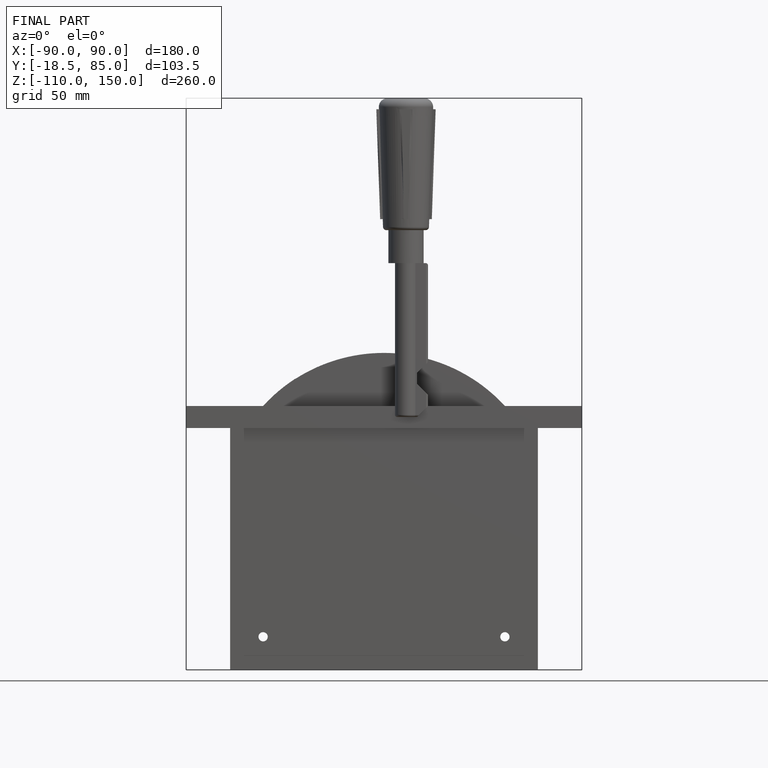
[diagram: finished part — front view with bounding-box wireframe]
